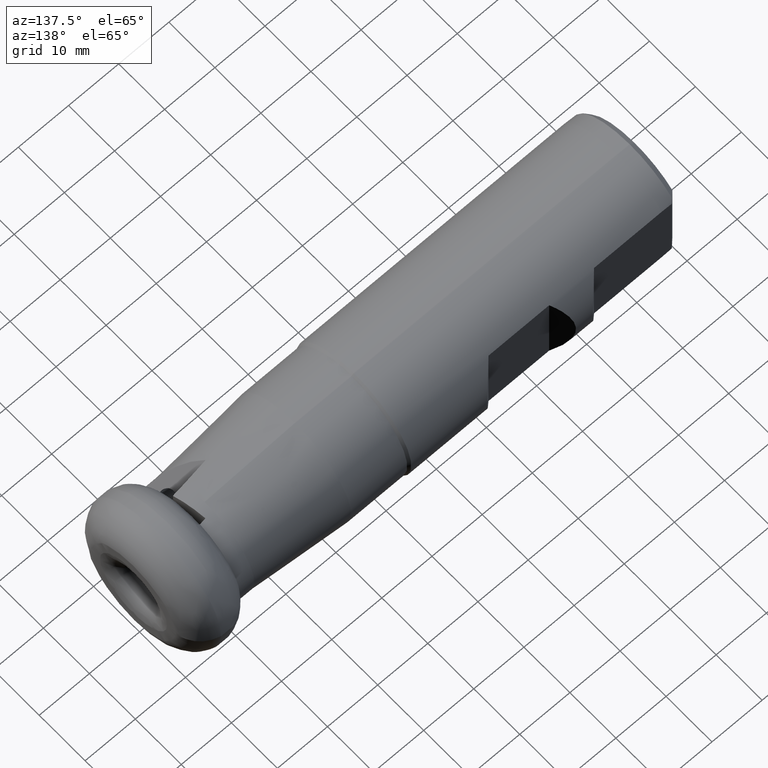
[diagram: clean part render]
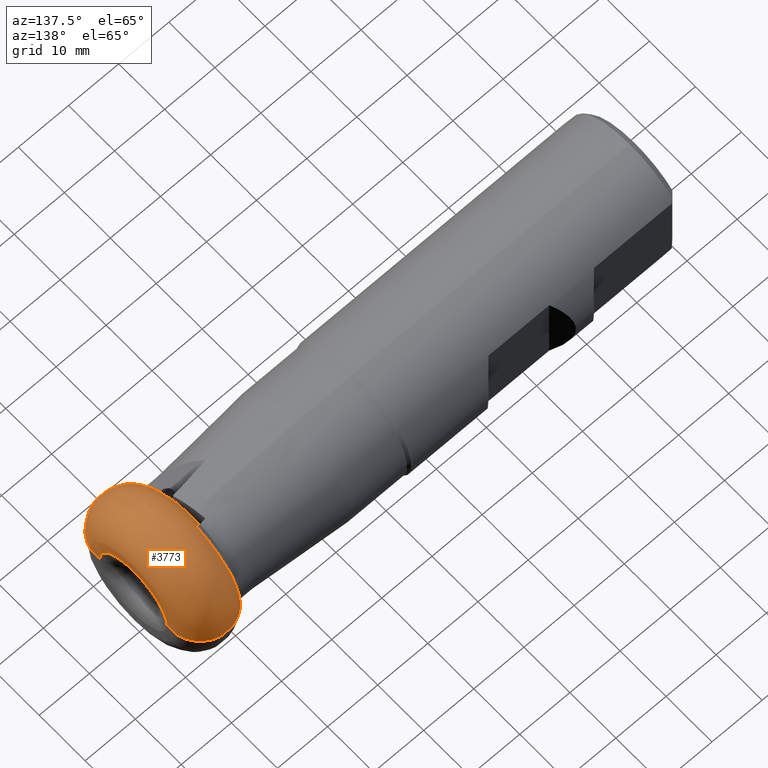
[diagram: same view with one face highlighted and labeled with its STEP entity id]
A machine part, auxiliary view. The second image highlights one B-rep face of the part: STEP entity #3773.
In plain terms, the highlighted face is a freeform B-spline surface patch.
Its self-contained STEP definition (entity closure, byte-faithful):
#1 = EDGE_CURVE ( 'NONE', #21, #2, #1566, .T. ) ;
#2 = VERTEX_POINT ( 'NONE', #2540 ) ;
#4 = VERTEX_POINT ( 'NONE', #921 ) ;
#6 = CARTESIAN_POINT ( 'NONE',  ( -2.703280238819637300, 13.76532998177207600, 0.0000000000000000000 ) ) ;
#15 = CARTESIAN_POINT ( 'NONE',  ( -2.308401257118657400, -13.61618130213184200, 27.23236260426368500 ) ) ;
#21 = VERTEX_POINT ( 'NONE', #1885 ) ;
#26 = EDGE_CURVE ( 'NONE', #506, #4122, #2174, .T. ) ;
#35 = CARTESIAN_POINT ( 'NONE',  ( -1.325018097569024700, 13.08675655905964600, 0.0000000000000000000 ) ) ;
#50 = CARTESIAN_POINT ( 'NONE',  ( -5.598932259241789400, 13.98230766846281600, 0.0000000000000000000 ) ) ;
#51 =( BOUNDED_SURFACE ( )  B_SPLINE_SURFACE ( 3, 3, ( 
 ( #3123, #205, #1834, #3455 ),
 ( #870, #2182, #2781, #3439 ),
 ( #3153, #244, #2493, #2464 ),
 ( #531, #894, #1489, #3482 ),
 ( #517, #4107, #2131, #857 ),
 ( #192, #2450, #4137, #1198 ),
 ( #1532, #3521, #313, #1256 ),
 ( #1558, #2895, #621, #965 ),
 ( #1573, #3891, #1883, #948 ),
 ( #3849, #4222, #2552, #259 ),
 ( #592, #919, #1911, #2908 ),
 ( #2579, #2868, #1610, #2209 ),
 ( #3534, #2248, #3200, #4212 ),
 ( #2538, #1288, #2218, #3235 ),
 ( #3561, #905, #1924, #2234 ),
 ( #581, #285, #3877, #4233 ),
 ( #3218, #934, #1585, #2854 ),
 ( #3862, #634, #1270, #1226 ),
 ( #3507, #1900, #606, #271 ),
 ( #2877, #3549, #2524, #3836 ),
 ( #1601, #296, #1866, #2569 ),
 ( #4183, #2193, #3189, #1240 ),
 ( #4196, #4253, #365, #2592 ),
 ( #1632, #1316, #3915, #975 ),
 ( #35, #3614, #2944, #3259 ),
 ( #3945, #328, #1975, #2314 ),
 ( #1357, #2287, #2628, #645 ),
 ( #378, #351, #1669, #1655 ),
 ( #2920, #3592, #15, #2642 ),
 ( #6, #1951, #3248, #2972 ),
 ( #3299, #1012, #698, #1303 ),
 ( #2273, #2615, #2302, #3580 ),
 ( #1961, #1619, #3902, #1941 ),
 ( #682, #672, #4243, #1342 ),
 ( #1331, #2958, #3958, #339 ),
 ( #2605, #996, #3289, #2263 ),
 ( #660, #2930, #3628, #986 ),
 ( #3272, #1991, #3602, #3930 ),
 ( #1646, #455, #4046, #1029 ),
 ( #3344, #106, #391, #2345 ),
 ( #2656, #2032, #3692, #1746 ),
 ( #3993, #2016, #3009, #2988 ),
 ( #3675, #408, #3326, #1414 ),
 ( #1072, #68, #1400, #1714 ),
 ( #3027, #3377, #2047, #85 ),
 ( #2334, #1729, #1697, #4027 ),
 ( #3360, #2061, #3041, #1040 ),
 ( #2669, #726, #2377, #711 ),
 ( #3654, #1383, #1055, #4010 ),
 ( #122, #441, #747, #2365 ),
 ( #2706, #424, #760, #2394 ),
 ( #1427, #2686, #1089, #3708 ),
 ( #2720, #775, #3313, #1368 ),
 ( #3640, #1682, #3975, #2002 ),
 ( #50, #1801, #3394, #156 ),
 ( #1441, #2423, #4103, #484 ),
 ( #793, #2111, #2124, #196 ),
 ( #1789, #2791, #3058, #2746 ),
 ( #807, #3766, #172, #1760 ),
 ( #2436, #1134, #2776, #1497 ),
 ( #3435, #471, #498, #824 ),
 ( #3780, #3091, #3423, #3074 ),
 ( #1118, #1470, #4119, #3756 ),
 ( #2141, #4088, #3118, #2758 ),
 ( #3104, #510, #2730, #838 ),
 ( #1149, #2409, #1484, #189 ),
 ( #1100, #2448, #1164, #3451 ),
 ( #137, #1815, #2459, #3409 ),
 ( #527, #3722, #2098, #4064 ),
 ( #2079, #1455, #3742, #1777 ),
 ( #4077, #2150, #3504, #1526 ),
 ( #3844, #3477, #3819, #3132 ),
 ( #1853, #4149, #1513, #1221 ),
 ( #4179, #4165, #1552, #562 ),
 ( #251, #865, #3833, #3160 ),
 ( #1862, #2519, #537, #3812 ),
 ( #2806, #3187, #2175, #576 ),
 ( #852, #2205, #239, #3516 ),
 ( #3150, #212, #1190, #2187 ),
 ( #892, #2503, #2473, #1180 ),
 ( #1843, #902, #2849, #266 ),
 ( #2162, #1236, #227, #4190 ),
 ( #2489, #3462, #1568, #549 ),
 ( #2534, #1878, #588, #2820 ),
 ( #3797, #880, #1829, #2835 ),
 ( #1208, #3490, #1544, #4132 ),
 ( #3176, #3589, #2889, #3229 ),
 ( #1935, #2875, #943, #3912 ),
 ( #1608, #1947, #4217, #2916 ),
 ( #642, #2905, #323, #2547 ),
 ( #3573, #1282, #2214, #3889 ),
 ( #962, #1892, #1596, #3871 ),
 ( #602, #4207, #3556, #2230 ),
 ( #3243, #1298, #1618, #1909 ),
 ( #2600, #291, #4230, #282 ),
 ( #1628, #631, #2565, #3530 ),
 ( #2261, #4250, #1266, #1919 ) ),
 .UNSPECIFIED., .F., .F., .T. ) 
 B_SPLINE_SURFACE_WITH_KNOTS ( ( 4, 1, 1, 1, 1, 1, 1, 1, 1, 1, 1, 1, 1, 1, 1, 1, 1, 1, 1, 1, 1, 1, 1, 1, 1, 1, 1, 1, 1, 1, 1, 1, 1, 1, 1, 1, 1, 1, 1, 1, 1, 1, 1, 1, 1, 1, 1, 1, 1, 1, 1, 1, 1, 1, 1, 1, 1, 1, 1, 1, 1, 1, 1, 1, 1, 1, 1, 1, 1, 1, 1, 1, 1, 1, 1, 1, 1, 1, 1, 1, 1, 1, 1, 1, 1, 1, 1, 1, 1, 1, 1, 1, 1, 1, 4 ),
 ( 4, 4 ),
 ( 0.0000000000000000000, 0.01130534595137227400, 0.03262522702179500300, 0.03944693190064391800, 0.04626863677955585900, 0.04843230570304367400, 0.05160236859797093200, 0.05616432844316231900, 0.06445827711618543100, 0.06795363262469919500, 0.07073990344938203800, 0.07558966582480790300, 0.07989749515589275600, 0.08332163639393361200, 0.08906039170578526600, 0.09367427182374669900, 0.09870298408307631700, 0.1086217879016179900, 0.1206833290916803900, 0.1299924011964113900, 0.1447171598259016600, 0.1613076647777132400, 0.1729960869242624900, 0.1794184733086965600, 0.1806793446742308300, 0.1875902844302745100, 0.1961688323014263400, 0.2077732183048341700, 0.2186858169738703800, 0.2299562559556106700, 0.2373758669688248400, 0.2403759941537145200, 0.2415301615241051100, 0.2422868312315115700, 0.2429856293339525400, 0.2440598911528308000, 0.2454252760548831000, 0.2474876490498973100, 0.2491767229150980400, 0.2508657967802983000, 0.2531730408774643900, 0.2575896410523989000, 0.2646768853826386200, 0.2717612862076463900, 0.2774198956651483500, 0.2812517099511059300, 0.2826712177777794800, 0.2849500467146187700, 0.2878238538176826600, 0.2893215071931410400, 0.2921030994318878400, 0.2945783493470322000, 0.2959717966085058100, 0.2969487136005049000, 0.2976020084748713900, 0.2980814326223528200, 0.2988512068544807400, 0.3001578949288066800, 0.3005894668829741700, 0.3012143885073946800, 0.3019243328495444000, 0.3055160289368941100, 0.3078762260891393400, 0.3125500280631235400, 0.3151526090580186700, 0.3174801213550658700, 0.3184086928171509000, 0.3198012278666403900, 0.3202524749412359300, 0.3210379777854402400, 0.3246351666033500700, 0.3293663452209217900, 0.3307554602938432800, 0.3375176127013004800, 0.3430380445649023300, 0.3443702006418758500, 0.3489046035464484800, 0.3526152487328481600, 0.3761640246657207400, 0.3933007096610622300, 0.4127205227687242300, 0.4248433803466157300, 0.4286067161066640700, 0.4298691554035714600, 0.4353397360020971300, 0.4619937110579279700, 0.4792066866336162600, 0.4893921979652296500, 0.4912826216993576600, 0.4921930583133714600, 0.4930655993062135800, 0.4951626807810747300, 0.4967117815261122300, 0.4987614708195358700, 0.5000000000000001100 ),
 ( 0.0000000000000000000, 1.000000000000000000 ),
 .UNSPECIFIED. ) 
 GEOMETRIC_REPRESENTATION_ITEM ( )  RATIONAL_B_SPLINE_SURFACE ( (
 ( 1.000000000000000000, 0.3333333333333334300, 0.3333333333333334300, 1.000000000000000000),
 ( 1.000000000000000000, 0.3333333333333334300, 0.3333333333333334300, 1.000000000000000000),
 ( 1.000000000000000000, 0.3333333333333334300, 0.3333333333333334300, 1.000000000000000000),
 ( 1.000000000000000000, 0.3333333333333334300, 0.3333333333333334300, 1.000000000000000000),
 ( 1.000000000000000000, 0.3333333333333334300, 0.3333333333333334300, 1.000000000000000000),
 ( 1.000000000000000000, 0.3333333333333334300, 0.3333333333333334300, 1.000000000000000000),
 ( 1.000000000000000000, 0.3333333333333334300, 0.3333333333333334300, 1.000000000000000000),
 ( 1.000000000000000000, 0.3333333333333334300, 0.3333333333333334300, 1.000000000000000000),
 ( 1.000000000000000000, 0.3333333333333334300, 0.3333333333333334300, 1.000000000000000000),
 ( 1.000000000000000000, 0.3333333333333334300, 0.3333333333333334300, 1.000000000000000000),
 ( 1.000000000000000000, 0.3333333333333334300, 0.3333333333333334300, 1.000000000000000000),
 ( 1.000000000000000000, 0.3333333333333334300, 0.3333333333333334300, 1.000000000000000000),
 ( 1.000000000000000000, 0.3333333333333334300, 0.3333333333333334300, 1.000000000000000000),
 ( 1.000000000000000000, 0.3333333333333334300, 0.3333333333333334300, 1.000000000000000000),
 ( 1.000000000000000000, 0.3333333333333334300, 0.3333333333333334300, 1.000000000000000000),
 ( 1.000000000000000000, 0.3333333333333334300, 0.3333333333333334300, 1.000000000000000000),
 ( 1.000000000000000000, 0.3333333333333334300, 0.3333333333333334300, 1.000000000000000000),
 ( 1.000000000000000000, 0.3333333333333334300, 0.3333333333333334300, 1.000000000000000000),
 ( 1.000000000000000000, 0.3333333333333334300, 0.3333333333333334300, 1.000000000000000000),
 ( 1.000000000000000000, 0.3333333333333334300, 0.3333333333333334300, 1.000000000000000000),
 ( 1.000000000000000000, 0.3333333333333334300, 0.3333333333333334300, 1.000000000000000000),
 ( 1.000000000000000000, 0.3333333333333334300, 0.3333333333333334300, 1.000000000000000000),
 ( 1.000000000000000000, 0.3333333333333334300, 0.3333333333333334300, 1.000000000000000000),
 ( 1.000000000000000000, 0.3333333333333334300, 0.3333333333333334300, 1.000000000000000000),
 ( 1.000000000000000000, 0.3333333333333334300, 0.3333333333333334300, 1.000000000000000000),
 ( 1.000000000000000000, 0.3333333333333334300, 0.3333333333333334300, 1.000000000000000000),
 ( 1.000000000000000000, 0.3333333333333334300, 0.3333333333333334300, 1.000000000000000000),
 ( 1.000000000000000000, 0.3333333333333334300, 0.3333333333333334300, 1.000000000000000000),
 ( 1.000000000000000000, 0.3333333333333334300, 0.3333333333333334300, 1.000000000000000000),
 ( 1.000000000000000000, 0.3333333333333334300, 0.3333333333333334300, 1.000000000000000000),
 ( 1.000000000000000000, 0.3333333333333334300, 0.3333333333333334300, 1.000000000000000000),
 ( 1.000000000000000000, 0.3333333333333334300, 0.3333333333333334300, 1.000000000000000000),
 ( 1.000000000000000000, 0.3333333333333334300, 0.3333333333333334300, 1.000000000000000000),
 ( 1.000000000000000000, 0.3333333333333334300, 0.3333333333333334300, 1.000000000000000000),
 ( 1.000000000000000000, 0.3333333333333334300, 0.3333333333333334300, 1.000000000000000000),
 ( 1.000000000000000000, 0.3333333333333334300, 0.3333333333333334300, 1.000000000000000000),
 ( 1.000000000000000000, 0.3333333333333334300, 0.3333333333333334300, 1.000000000000000000),
 ( 1.000000000000000000, 0.3333333333333334300, 0.3333333333333334300, 1.000000000000000000),
 ( 1.000000000000000000, 0.3333333333333334300, 0.3333333333333334300, 1.000000000000000000),
 ( 1.000000000000000000, 0.3333333333333334300, 0.3333333333333334300, 1.000000000000000000),
 ( 1.000000000000000000, 0.3333333333333334300, 0.3333333333333334300, 1.000000000000000000),
 ( 1.000000000000000000, 0.3333333333333334300, 0.3333333333333334300, 1.000000000000000000),
 ( 1.000000000000000000, 0.3333333333333334300, 0.3333333333333334300, 1.000000000000000000),
 ( 1.000000000000000000, 0.3333333333333334300, 0.3333333333333334300, 1.000000000000000000),
 ( 1.000000000000000000, 0.3333333333333334300, 0.3333333333333334300, 1.000000000000000000),
 ( 1.000000000000000000, 0.3333333333333334300, 0.3333333333333334300, 1.000000000000000000),
 ( 1.000000000000000000, 0.3333333333333334300, 0.3333333333333334300, 1.000000000000000000),
 ( 1.000000000000000000, 0.3333333333333334300, 0.3333333333333334300, 1.000000000000000000),
 ( 1.000000000000000000, 0.3333333333333334300, 0.3333333333333334300, 1.000000000000000000),
 ( 1.000000000000000000, 0.3333333333333334300, 0.3333333333333334300, 1.000000000000000000),
 ( 1.000000000000000000, 0.3333333333333334300, 0.3333333333333334300, 1.000000000000000000),
 ( 1.000000000000000000, 0.3333333333333334300, 0.3333333333333334300, 1.000000000000000000),
 ( 1.000000000000000000, 0.3333333333333334300, 0.3333333333333334300, 1.000000000000000000),
 ( 1.000000000000000000, 0.3333333333333334300, 0.3333333333333334300, 1.000000000000000000),
 ( 1.000000000000000000, 0.3333333333333334300, 0.3333333333333334300, 1.000000000000000000),
 ( 1.000000000000000000, 0.3333333333333334300, 0.3333333333333334300, 1.000000000000000000),
 ( 1.000000000000000000, 0.3333333333333334300, 0.3333333333333334300, 1.000000000000000000),
 ( 1.000000000000000000, 0.3333333333333334300, 0.3333333333333334300, 1.000000000000000000),
 ( 1.000000000000000000, 0.3333333333333334300, 0.3333333333333334300, 1.000000000000000000),
 ( 1.000000000000000000, 0.3333333333333334300, 0.3333333333333334300, 1.000000000000000000),
 ( 1.000000000000000000, 0.3333333333333334300, 0.3333333333333334300, 1.000000000000000000),
 ( 1.000000000000000000, 0.3333333333333334300, 0.3333333333333334300, 1.000000000000000000),
 ( 1.000000000000000000, 0.3333333333333334300, 0.3333333333333334300, 1.000000000000000000),
 ( 1.000000000000000000, 0.3333333333333334300, 0.3333333333333334300, 1.000000000000000000),
 ( 1.000000000000000000, 0.3333333333333334300, 0.3333333333333334300, 1.000000000000000000),
 ( 1.000000000000000000, 0.3333333333333334300, 0.3333333333333334300, 1.000000000000000000),
 ( 1.000000000000000000, 0.3333333333333334300, 0.3333333333333334300, 1.000000000000000000),
 ( 1.000000000000000000, 0.3333333333333334300, 0.3333333333333334300, 1.000000000000000000),
 ( 1.000000000000000000, 0.3333333333333334300, 0.3333333333333334300, 1.000000000000000000),
 ( 1.000000000000000000, 0.3333333333333334300, 0.3333333333333334300, 1.000000000000000000),
 ( 1.000000000000000000, 0.3333333333333334300, 0.3333333333333334300, 1.000000000000000000),
 ( 1.000000000000000000, 0.3333333333333334300, 0.3333333333333334300, 1.000000000000000000),
 ( 1.000000000000000000, 0.3333333333333334300, 0.3333333333333334300, 1.000000000000000000),
 ( 1.000000000000000000, 0.3333333333333334300, 0.3333333333333334300, 1.000000000000000000),
 ( 1.000000000000000000, 0.3333333333333334300, 0.3333333333333334300, 1.000000000000000000),
 ( 1.000000000000000000, 0.3333333333333334300, 0.3333333333333334300, 1.000000000000000000),
 ( 1.000000000000000000, 0.3333333333333334300, 0.3333333333333334300, 1.000000000000000000),
 ( 1.000000000000000000, 0.3333333333333334300, 0.3333333333333334300, 1.000000000000000000),
 ( 1.000000000000000000, 0.3333333333333334300, 0.3333333333333334300, 1.000000000000000000),
 ( 1.000000000000000000, 0.3333333333333334300, 0.3333333333333334300, 1.000000000000000000),
 ( 1.000000000000000000, 0.3333333333333334300, 0.3333333333333334300, 1.000000000000000000),
 ( 1.000000000000000000, 0.3333333333333334300, 0.3333333333333334300, 1.000000000000000000),
 ( 1.000000000000000000, 0.3333333333333334300, 0.3333333333333334300, 1.000000000000000000),
 ( 1.000000000000000000, 0.3333333333333334300, 0.3333333333333334300, 1.000000000000000000),
 ( 1.000000000000000000, 0.3333333333333334300, 0.3333333333333334300, 1.000000000000000000),
 ( 1.000000000000000000, 0.3333333333333334300, 0.3333333333333334300, 1.000000000000000000),
 ( 1.000000000000000000, 0.3333333333333334300, 0.3333333333333334300, 1.000000000000000000),
 ( 1.000000000000000000, 0.3333333333333334300, 0.3333333333333334300, 1.000000000000000000),
 ( 1.000000000000000000, 0.3333333333333334300, 0.3333333333333334300, 1.000000000000000000),
 ( 1.000000000000000000, 0.3333333333333334300, 0.3333333333333334300, 1.000000000000000000),
 ( 1.000000000000000000, 0.3333333333333334300, 0.3333333333333334300, 1.000000000000000000),
 ( 1.000000000000000000, 0.3333333333333334300, 0.3333333333333334300, 1.000000000000000000),
 ( 1.000000000000000000, 0.3333333333333334300, 0.3333333333333334300, 1.000000000000000000),
 ( 1.000000000000000000, 0.3333333333333334300, 0.3333333333333334300, 1.000000000000000000),
 ( 1.000000000000000000, 0.3333333333333334300, 0.3333333333333334300, 1.000000000000000000),
 ( 1.000000000000000000, 0.3333333333333334300, 0.3333333333333334300, 1.000000000000000000),
 ( 1.000000000000000000, 0.3333333333333334300, 0.3333333333333334300, 1.000000000000000000) ) ) 
 REPRESENTATION_ITEM ( '' )  SURFACE ( )  );
#52 = CARTESIAN_POINT ( 'NONE',  ( -10.47176449661783900, -4.168521011715995400, 8.256892842653991600 ) ) ;
#62 = CARTESIAN_POINT ( 'NONE',  ( -10.47425624275024700, -4.168871203797317900, 7.889376126105882600 ) ) ;
#68 = CARTESIAN_POINT ( 'NONE',  ( -4.394240351381483800, 13.98233441954549000, 27.96466883909097900 ) ) ;
#79 = CARTESIAN_POINT ( 'NONE',  ( -0.3841735850420935900, 12.32373047421367600, 0.0000000000000000000 ) ) ;
#85 = CARTESIAN_POINT ( 'NONE',  ( -4.641811920279442600, -13.98233480739723900, 1.712342156648565000E-015 ) ) ;
#94 = CARTESIAN_POINT ( 'NONE',  ( -10.48730565372312500, 2.090225770707621500, 8.890269282814392300 ) ) ;
#99 = CARTESIAN_POINT ( 'NONE',  ( -3.320899798752765500, 13.93496111493880100, 0.0000000000000000000 ) ) ;
#106 = CARTESIAN_POINT ( 'NONE',  ( -3.813738694552425600, 13.98232723165446200, 27.96465446330892100 ) ) ;
#115 = CARTESIAN_POINT ( 'NONE',  ( -5.823190681331341000, 13.95646186878541100, 0.0000000000000000000 ) ) ;
#122 = CARTESIAN_POINT ( 'NONE',  ( -5.244032826059655200, 13.98233486403953700, 0.0000000000000000000 ) ) ;
#125 = DIRECTION ( 'NONE',  ( 1.000000000000000000, -0.0000000000000000000, -0.0000000000000000000 ) ) ;
#126 = ORIENTED_EDGE ( 'NONE', *, *, #1366, .F. ) ;
#133 = CARTESIAN_POINT ( 'NONE',  ( -5.712039619970103600, 13.97699605320809900, 0.0000000000000000000 ) ) ;
#137 = CARTESIAN_POINT ( 'NONE',  ( -6.390872429448622300, 13.80711104912438400, 0.0000000000000000000 ) ) ;
#146 = CARTESIAN_POINT ( 'NONE',  ( -5.741254487384214400, -13.97285851436577900, 1.711181645455689100E-015 ) ) ;
#150 = CARTESIAN_POINT ( 'NONE',  ( -3.462223797731507800, 13.96510807533761800, 0.0000000000000000000 ) ) ;
#152 = VERTEX_POINT ( 'NONE', #2366 ) ;
#156 = CARTESIAN_POINT ( 'NONE',  ( -5.598932259241789400, -13.98230766846281600, 1.712338833087647700E-015 ) ) ;
#163 = CARTESIAN_POINT ( 'NONE',  ( -10.47282107851877200, 2.092261444997075300, 8.607325650371111100 ) ) ;
#165 = CARTESIAN_POINT ( 'NONE',  ( 1.224719269835684100, -8.362741847691280500, 1.024140503587074800E-015 ) ) ;
#172 = CARTESIAN_POINT ( 'NONE',  ( -5.712039619970103600, -13.97699605320809400, 27.95399210641618700 ) ) ;
#183 = CARTESIAN_POINT ( 'NONE',  ( -5.712039619970103600, -13.97699605320809900, 1.711688347825648800E-015 ) ) ;
#189 = CARTESIAN_POINT ( 'NONE',  ( -6.265429889350721200, -13.84548276328536800, 1.695582614870727700E-015 ) ) ;
#192 = CARTESIAN_POINT ( 'NONE',  ( 1.233406596305280500, 8.996485045345775000, 0.0000000000000000000 ) ) ;
#196 = CARTESIAN_POINT ( 'NONE',  ( -5.649022380765168300, -13.98214535502941700, 1.712318955424980600E-015 ) ) ;
#202 = DIRECTION ( 'NONE',  ( 0.0000000000000000000, 1.000000000000000000, 0.0000000000000000000 ) ) ;
#205 = CARTESIAN_POINT ( 'NONE',  ( 1.209227693559259000, 7.321947127893749600, 14.64389425578749700 ) ) ;
#207 = CARTESIAN_POINT ( 'NONE',  ( -4.394240351381483800, -13.98233441954549100, 1.712342109150425200E-015 ) ) ;
#212 = CARTESIAN_POINT ( 'NONE',  ( -7.771247502712998100, 13.17173360940343200, 26.34346721880685700 ) ) ;
#214 = CIRCLE ( 'NONE', #4028, 8.857968887152253500 ) ;
#227 = CARTESIAN_POINT ( 'NONE',  ( -9.197904300289216900, -11.90290489376690700, 23.80580978753381400 ) ) ;
#238 = CARTESIAN_POINT ( 'NONE',  ( -7.039551555797545200, 13.56011665911284100, 0.0000000000000000000 ) ) ;
#239 = CARTESIAN_POINT ( 'NONE',  ( -7.425469830425820200, -13.36663765314472800, 26.73327530628945700 ) ) ;
#244 = CARTESIAN_POINT ( 'NONE',  ( 1.216973776333628100, 7.870332073132182400, 15.74066414626436300 ) ) ;
#246 = CARTESIAN_POINT ( 'NONE',  ( -6.390872429448622300, -13.80711104912438400, 1.690883435178223000E-015 ) ) ;
#251 = CARTESIAN_POINT ( 'NONE',  ( -7.039551555797545200, 13.56011665911284100, 0.0000000000000000000 ) ) ;
#259 = CARTESIAN_POINT ( 'NONE',  ( 1.128057711848410100, -9.664295444924141200, 1.183534848264069400E-015 ) ) ;
#265 = CIRCLE ( 'NONE', #1976, 11.92451136441239100 ) ;
#266 = CARTESIAN_POINT ( 'NONE',  ( -8.791626760801252200, -12.35699476437853600, 1.513295408527677700E-015 ) ) ;
#271 = CARTESIAN_POINT ( 'NONE',  ( 0.4416343483359024300, -11.25888833697338100, 1.378816156383191800E-015 ) ) ;
#282 = CARTESIAN_POINT ( 'NONE',  ( -10.47430298285729000, -8.914469623003615300, 1.091707668990769000E-015 ) ) ;
#285 = CARTESIAN_POINT ( 'NONE',  ( 0.7995198207380377300, 10.57335247944065800, 21.14670495888131200 ) ) ;
#290 = CARTESIAN_POINT ( 'NONE',  ( 1.209227693559258700, -7.321947127893749600, 1.304527104264320800E-015 ) ) ;
#291 = CARTESIAN_POINT ( 'NONE',  ( -10.47430298285729000, 8.914469623003615300, 17.82893924600722700 ) ) ;
#296 = CARTESIAN_POINT ( 'NONE',  ( -0.04670896126343638400, 11.94409385761946400, 23.88818771523892400 ) ) ;
#306 = CARTESIAN_POINT ( 'NONE',  ( -10.47282107851877500, -8.513746570742677400, 2.445349082426591500 ) ) ;
#313 = CARTESIAN_POINT ( 'NONE',  ( 1.238891260286288700, -9.148313759570600100, 18.29662751914120000 ) ) ;
#315 = CARTESIAN_POINT ( 'NONE',  ( -9.167822602580525200, 9.348057227950581800, 7.403228845791177000 ) ) ;
#323 = CARTESIAN_POINT ( 'NONE',  ( -10.48207833242508300, -9.196205427004850100, 18.39241085400970000 ) ) ;
#328 = CARTESIAN_POINT ( 'NONE',  ( -1.478439895103159900, 13.18503793714110900, 26.37007587428221100 ) ) ;
#334 = CARTESIAN_POINT ( 'NONE',  ( -10.17001847042400300, -9.975676638146419300, 2.363410462884786100 ) ) ;
#339 = CARTESIAN_POINT ( 'NONE',  ( -3.555047440771387000, -13.97922953067941200, 1.711961869929269700E-015 ) ) ;
#347 = CARTESIAN_POINT ( 'NONE',  ( -10.47815013050312900, -4.169418454032339100, 8.220559417116042800 ) ) ;
#351 = CARTESIAN_POINT ( 'NONE',  ( -1.955387367478093100, 13.45377742367437400, 26.90755484734874500 ) ) ;
#360 = CARTESIAN_POINT ( 'NONE',  ( -10.47176449661783900, -4.168521011715995400, 8.256892842653991600 ) ) ;
#365 = CARTESIAN_POINT ( 'NONE',  ( -0.7800453682299748300, -12.68798733530955000, 25.37597467061910100 ) ) ;
#378 = CARTESIAN_POINT ( 'NONE',  ( -1.955387367478092800, 13.45377742367437400, 0.0000000000000000000 ) ) ;
#391 = CARTESIAN_POINT ( 'NONE',  ( -3.813738694552425600, -13.98232723165446100, 27.96465446330892100 ) ) ;
#399 = CARTESIAN_POINT ( 'NONE',  ( -9.167822602569444300, 2.275667020092440900, 11.70535394142728300 ) ) ;
#408 = CARTESIAN_POINT ( 'NONE',  ( -4.162174707643480100, 13.98233565127205800, 27.96467130254411200 ) ) ;
#417 = CARTESIAN_POINT ( 'NONE',  ( -10.48157764379394100, 2.091030790004254400, 8.960533738083922700 ) ) ;
#419 = CARTESIAN_POINT ( 'NONE',  ( -5.598932259241789400, 13.98230766846281600, 0.0000000000000000000 ) ) ;
#424 = CARTESIAN_POINT ( 'NONE',  ( -5.333335385714812000, 13.98233436623283600, 27.96466873246566800 ) ) ;
#434 = CARTESIAN_POINT ( 'NONE',  ( -3.681934093997913500, 13.98221174219539800, 0.0000000000000000000 ) ) ;
#441 = CARTESIAN_POINT ( 'NONE',  ( -5.244032826059655200, 13.98233486403953700, 27.96466972807906600 ) ) ;
#449 = CARTESIAN_POINT ( 'NONE',  ( -1.657490151538683300, 13.29322581303529000, 0.0000000000000000000 ) ) ;
#455 = CARTESIAN_POINT ( 'NONE',  ( -3.745816616713286700, 13.98236565429549900, 27.96473130859099500 ) ) ;
#465 = CARTESIAN_POINT ( 'NONE',  ( 1.209227693559258700, -7.321947127893749600, 1.304527104264320800E-015 ) ) ;
#467 = CARTESIAN_POINT ( 'NONE',  ( -5.561183144822944500, 13.98234675798619100, 0.0000000000000000000 ) ) ;
#471 = CARTESIAN_POINT ( 'NONE',  ( -5.762928385016255800, 13.96875091869517700, 27.93750183739034300 ) ) ;
#478 = CARTESIAN_POINT ( 'NONE',  ( -3.320899798752765500, -13.93496111493880100, 1.706540552565263500E-015 ) ) ;
#480 = CARTESIAN_POINT ( 'NONE',  ( -8.760066776893522100, 12.38513298813220100, 0.0000000000000000000 ) ) ;
#484 = CARTESIAN_POINT ( 'NONE',  ( -5.625269813901800500, -13.98238920485406600, 1.712348818415703500E-015 ) ) ;
#492 = CARTESIAN_POINT ( 'NONE',  ( -0.04670896126343637700, -11.94409385761946400, 1.462729631144924000E-015 ) ) ;
#498 = CARTESIAN_POINT ( 'NONE',  ( -5.762928385016255800, -13.96875091869517100, 27.93750183739034300 ) ) ;
#505 = CARTESIAN_POINT ( 'NONE',  ( -5.078956856681163100, -13.98233457775775100, 1.712342128525838800E-015 ) ) ;
#506 = VERTEX_POINT ( 'NONE', #681 ) ;
#510 = CARTESIAN_POINT ( 'NONE',  ( -6.150091026817561300, 13.87825495972523600, 27.75650991945046200 ) ) ;
#517 = CARTESIAN_POINT ( 'NONE',  ( 1.232307040593647600, 8.799219485960541900, 0.0000000000000000000 ) ) ;
#520 = CARTESIAN_POINT ( 'NONE',  ( 0.7995198207380377300, -10.57335247944065600, 1.294862227020373100E-015 ) ) ;
#527 = CARTESIAN_POINT ( 'NONE',  ( -6.423836236284001800, 13.79655709823822600, 0.0000000000000000000 ) ) ;
#531 = CARTESIAN_POINT ( 'NONE',  ( 1.224719269835684100, 8.362741847691280500, 0.0000000000000000000 ) ) ;
#535 = CARTESIAN_POINT ( 'NONE',  ( 0.7179846734936250500, -10.74723743955645700, 1.316156993002941100E-015 ) ) ;
#537 = CARTESIAN_POINT ( 'NONE',  ( -7.192911585383094500, -13.48674142265072000, 26.97348284530144000 ) ) ;
#549 = CARTESIAN_POINT ( 'NONE',  ( -9.459737965669395600, -11.54787298828514300, 1.414206569206358000E-015 ) ) ;
#558 = CARTESIAN_POINT ( 'NONE',  ( -7.425469830425819300, -13.36663765314473400, 1.636941001728618800E-015 ) ) ;
#559 = ORIENTED_EDGE ( 'NONE', *, *, #1, .F. ) ;
#562 = CARTESIAN_POINT ( 'NONE',  ( -6.882788539015608700, -13.62779152473141600, 1.668923127020975600E-015 ) ) ;
#576 = CARTESIAN_POINT ( 'NONE',  ( -7.319775342667497000, -13.42258980035657100, 1.643793163527458400E-015 ) ) ;
#581 = CARTESIAN_POINT ( 'NONE',  ( 0.7995198207380377300, 10.57335247944065600, 0.0000000000000000000 ) ) ;
#588 = CARTESIAN_POINT ( 'NONE',  ( -9.578578028232017900, -11.36977527303336200, 22.73955054606672700 ) ) ;
#592 = CARTESIAN_POINT ( 'NONE',  ( 1.075972129472385600, 9.838678335910112000, 0.0000000000000000000 ) ) ;
#599 = CARTESIAN_POINT ( 'NONE',  ( -9.346202099473389400, -11.54980892504194200, 1.929791047523395500 ) ) ;
#602 = CARTESIAN_POINT ( 'NONE',  ( -10.48466406296540600, 9.045581423843438900, 0.0000000000000000000 ) ) ;
#606 = CARTESIAN_POINT ( 'NONE',  ( 0.4416343483359024800, -11.25888833697337800, 22.51777667394675900 ) ) ;
#610 = CARTESIAN_POINT ( 'NONE',  ( -9.241850728835709500, 9.449958000063603000, 7.124220187760580600 ) ) ;
#617 = EDGE_CURVE ( 'NONE', #21, #3234, #2149, .T. ) ;
#621 = CARTESIAN_POINT ( 'NONE',  ( 1.223682003703439700, -9.271470469426558800, 18.54294093885311800 ) ) ;
#631 = CARTESIAN_POINT ( 'NONE',  ( -10.47316209472248600, 8.873429563798305600, 17.74685912759661100 ) ) ;
#634 = CARTESIAN_POINT ( 'NONE',  ( 0.6076646395209405200, 10.96515481700043700, 21.93030963400087100 ) ) ;
#640 = CARTESIAN_POINT ( 'NONE',  ( -10.48669957576695900, -8.806896299663076600, 2.492693448931401000 ) ) ;
#642 = CARTESIAN_POINT ( 'NONE',  ( -10.48207833242508300, 9.196205427004851900, 0.0000000000000000000 ) ) ;
#645 = CARTESIAN_POINT ( 'NONE',  ( -1.657490151538683300, -13.29322581303529000, 1.627950644227664000E-015 ) ) ;
#646 = ORIENTED_EDGE ( 'NONE', *, *, #2526, .T. ) ;
#647 = CARTESIAN_POINT ( 'NONE',  ( -10.48463569474183500, -4.076937678293707500, 8.083779903357571700 ) ) ;
#660 = CARTESIAN_POINT ( 'NONE',  ( -3.625731582832024500, 13.98259725457772600, 0.0000000000000000000 ) ) ;
#669 = CARTESIAN_POINT ( 'NONE',  ( 1.233406596305280500, 8.996485045345775000, 0.0000000000000000000 ) ) ;
#672 = CARTESIAN_POINT ( 'NONE',  ( -3.522659342918551300, 13.97559758650318100, 27.95119517300636100 ) ) ;
#681 = CARTESIAN_POINT ( 'NONE',  ( -10.47176449661783900, -4.168521011715995400, 8.256892842653991600 ) ) ;
#682 = CARTESIAN_POINT ( 'NONE',  ( -3.522659342918551300, 13.97559758650318400, 0.0000000000000000000 ) ) ;
#683 = B_SPLINE_CURVE_WITH_KNOTS ( 'NONE', 3,
 ( #3940, #1641, #2621, #1038, #3296, #669, #1351, #707, #1020, #3372, #2042, #3736, #2090, #1449, #2665, #3686, #756, #1756, #2027, #4021, #2056, #79, #3701, #1097, #3404, #2420, #449, #2388, #3037, #2357, #2403, #99, #150, #2716, #2072, #2371, #721, #434, #2698, #1723, #3000, #770, #786, #3718, #1740, #740, #4004, #3389, #3352, #1437, #1421, #3051, #1771, #467, #419, #4057, #1410, #1083, #133, #2681, #4039, #115, #2727, #3069, #1111, #4073, #3020, #1048, #3339, #1393, #3670, #1711, #1066, #3489, #238, #2486, #2862, #3831, #4189, #4146, #480, #3503, #2161 ),
 .UNSPECIFIED., .F., .F.,
 ( 4, 1, 1, 1, 1, 1, 1, 1, 1, 1, 1, 1, 1, 1, 1, 1, 1, 1, 1, 1, 1, 1, 1, 1, 1, 1, 1, 1, 1, 1, 1, 1, 1, 1, 1, 1, 1, 1, 1, 1, 1, 1, 1, 1, 1, 1, 1, 1, 1, 1, 1, 1, 1, 1, 1, 1, 1, 1, 1, 1, 1, 1, 1, 1, 1, 1, 1, 1, 1, 1, 1, 1, 1, 1, 1, 1, 1, 1, 1, 1, 4 ),
 ( 0.0000000000000000000, 0.01130534595137227400, 0.03262522702179500300, 0.03944693190064391800, 0.04626863677955586600, 0.04843230570304367400, 0.05160236859797093200, 0.05616432844316231900, 0.06445827711618543100, 0.06795363262469919500, 0.07073990344938203800, 0.07558966582480790300, 0.07989749515589275600, 0.08332163639393361200, 0.08906039170578526600, 0.09367427182374669900, 0.09870298408307631700, 0.1086217879016179900, 0.1206833290916803900, 0.1299924011964113900, 0.1447171598259016600, 0.1613076647777132400, 0.1729960869242624900, 0.1794184733086965600, 0.1806793446742308300, 0.1875902844302745100, 0.1961688323014263400, 0.2077732183048341700, 0.2186858169738703800, 0.2299562559556106700, 0.2373758669688248400, 0.2403759941537145200, 0.2415301615241051100, 0.2422868312315115700, 0.2429856293339525400, 0.2440598911528308000, 0.2454252760548831200, 0.2474876490498973100, 0.2491767229150980100, 0.2508657967802983000, 0.2531730408774643900, 0.2575896410523989000, 0.2646768853826386200, 0.2717612862076463900, 0.2774198956651483500, 0.2812517099511059300, 0.2826712177777794800, 0.2849500467146187700, 0.2878238538176826600, 0.2893215071931410400, 0.2921030994318878400, 0.2945783493470322000, 0.2959717966085058100, 0.2969487136005049000, 0.2976020084748713900, 0.2980814326223528200, 0.2988512068544807400, 0.3001578949288066800, 0.3005894668829741700, 0.3012143885073946800, 0.3019243328495444000, 0.3055160289368940600, 0.3078762260891393900, 0.3125500280631235400, 0.3151526090580186700, 0.3174801213550658700, 0.3184086928171508400, 0.3198012278666403900, 0.3202524749412359300, 0.3210379777854402400, 0.3246351666033500700, 0.3293663452209217900, 0.3307554602938432300, 0.3375176127013004800, 0.3430380445649023300, 0.3443702006418758500, 0.3489046035464484800, 0.3526152487328481600, 0.3761640246657207400, 0.3933007096610622300, 0.4093390334781848400 ),
 .UNSPECIFIED. ) ;
#684 = CARTESIAN_POINT ( 'NONE',  ( -10.48266316112799100, -4.090972984246011600, 8.225362841897149800 ) ) ;
#698 = CARTESIAN_POINT ( 'NONE',  ( -3.057326175268027900, -13.87254328047280400, 27.74508656094560900 ) ) ;
#707 = CARTESIAN_POINT ( 'NONE',  ( 1.223682003703439700, 9.271470469426560600, 0.0000000000000000000 ) ) ;
#711 = CARTESIAN_POINT ( 'NONE',  ( -5.078956856681163100, -13.98233457775775100, 1.712342128525838800E-015 ) ) ;
#721 = CARTESIAN_POINT ( 'NONE',  ( -3.625731582832024500, 13.98259725457772600, 0.0000000000000000000 ) ) ;
#726 = CARTESIAN_POINT ( 'NONE',  ( -5.078956856681163100, 13.98233457775774900, 27.96466915551549100 ) ) ;
#740 = CARTESIAN_POINT ( 'NONE',  ( -4.848740945689637100, 13.98233466131754500, 0.0000000000000000000 ) ) ;
#747 = CARTESIAN_POINT ( 'NONE',  ( -5.244032826059655200, -13.98233486403953300, 27.96466972807906600 ) ) ;
#756 = CARTESIAN_POINT ( 'NONE',  ( 0.7179846734936250500, 10.74723743955645700, 0.0000000000000000000 ) ) ;
#760 = CARTESIAN_POINT ( 'NONE',  ( -5.333335385714812000, -13.98233436623283400, 27.96466873246566800 ) ) ;
#762 = FACE_OUTER_BOUND ( 'NONE', #1352, .T. ) ;
#770 = CARTESIAN_POINT ( 'NONE',  ( -3.989749626724619100, 13.98233301406236300, 0.0000000000000000000 ) ) ;
#775 = CARTESIAN_POINT ( 'NONE',  ( -5.500687953425836200, 13.98232781135388000, 27.96465562270775300 ) ) ;
#786 = CARTESIAN_POINT ( 'NONE',  ( -4.162174707643481000, 13.98233565127205900, 0.0000000000000000000 ) ) ;
#793 = CARTESIAN_POINT ( 'NONE',  ( -5.649022380765168300, 13.98214535502941700, 0.0000000000000000000 ) ) ;
#801 = CARTESIAN_POINT ( 'NONE',  ( -5.823190681331341000, -13.95646186878541100, 1.709173635503014300E-015 ) ) ;
#807 = CARTESIAN_POINT ( 'NONE',  ( -5.712039619970103600, 13.97699605320809900, 0.0000000000000000000 ) ) ;
#812 = VERTEX_POINT ( 'NONE', #992 ) ;
#817 = CARTESIAN_POINT ( 'NONE',  ( -1.124610850410350000, -12.95125548300063500, 1.586071357219633400E-015 ) ) ;
#824 = CARTESIAN_POINT ( 'NONE',  ( -5.762928385016256700, -13.96875091869517700, 1.710678610066669900E-015 ) ) ;
#832 = CARTESIAN_POINT ( 'NONE',  ( -3.745816616713286700, -13.98236565429549900, 1.712345934304087100E-015 ) ) ;
#838 = CARTESIAN_POINT ( 'NONE',  ( -6.150091026817561300, -13.87825495972523600, 1.699596051417839000E-015 ) ) ;
#847 = CARTESIAN_POINT ( 'NONE',  ( -3.625731582832024500, -13.98259725457772600, 1.712374297158518200E-015 ) ) ;
#852 = CARTESIAN_POINT ( 'NONE',  ( -7.425469830425819300, 13.36663765314473400, 0.0000000000000000000 ) ) ;
#857 = CARTESIAN_POINT ( 'NONE',  ( 1.232307040593647600, -8.799219485960541900, 1.077593597847659400E-015 ) ) ;
#860 = CARTESIAN_POINT ( 'NONE',  ( -3.057326175268027400, -13.87254328047281000, 1.698896572446414900E-015 ) ) ;
#865 = CARTESIAN_POINT ( 'NONE',  ( -7.039551555797544300, 13.56011665911284100, 27.12023331822567200 ) ) ;
#870 = CARTESIAN_POINT ( 'NONE',  ( 1.212184945951810800, 7.463080127590135500, 0.0000000000000000000 ) ) ;
#880 = CARTESIAN_POINT ( 'NONE',  ( -9.649719348020095600, 11.25972242517898200, 22.51944485035796000 ) ) ;
#892 = CARTESIAN_POINT ( 'NONE',  ( -8.230654562353333100, 12.85714588250526300, 0.0000000000000000000 ) ) ;
#894 = CARTESIAN_POINT ( 'NONE',  ( 1.224719269835684100, 8.362741847691280500, 16.72548369538255700 ) ) ;
#902 = CARTESIAN_POINT ( 'NONE',  ( -8.791626760801252200, 12.35699476437853400, 24.71398952875706500 ) ) ;
#905 = CARTESIAN_POINT ( 'NONE',  ( 0.8676764001758373600, 10.41538778934933700, 20.83077557869867000 ) ) ;
#908 = CARTESIAN_POINT ( 'NONE',  ( -9.278998266422121300, 9.933342348008350700, 6.351449985752077900 ) ) ;
#910 = CARTESIAN_POINT ( 'NONE',  ( -6.733477718572021200, -13.68756809907655700, 1.676243646064552500E-015 ) ) ;
#919 = CARTESIAN_POINT ( 'NONE',  ( 1.075972129472385600, 9.838678335910112000, 19.67735667182022000 ) ) ;
#921 = CARTESIAN_POINT ( 'NONE',  ( 1.209227693559259000, 7.321947127893748700, 0.0000000000000000000 ) ) ;
#925 = CARTESIAN_POINT ( 'NONE',  ( -9.039974477135860600, -12.07876044681789600, 1.479221531886318800E-015 ) ) ;
#933 = ORIENTED_EDGE ( 'NONE', *, *, #3017, .T. ) ;
#934 = CARTESIAN_POINT ( 'NONE',  ( 0.7179846734936250500, 10.74723743955645700, 21.49447487911291100 ) ) ;
#936 = CARTESIAN_POINT ( 'NONE',  ( -9.236975444655243500, 10.13902446686173100, 6.123017618405625300 ) ) ;
#943 = CARTESIAN_POINT ( 'NONE',  ( -10.35828496160314000, -9.709447733967017800, 19.41889546793403600 ) ) ;
#947 = EDGE_CURVE ( 'NONE', #3234, #1899, #2878, .T. ) ;
#948 = CARTESIAN_POINT ( 'NONE',  ( 1.177416696506693200, -9.466152049014825200, 1.159269280706816500E-015 ) ) ;
#959 = CARTESIAN_POINT ( 'NONE',  ( -10.47000557683552000, -8.917644803859021300, 2.491710132550384300 ) ) ;
#962 = CARTESIAN_POINT ( 'NONE',  ( -10.48653571899260600, 9.102001141879368300, 0.0000000000000000000 ) ) ;
#965 = CARTESIAN_POINT ( 'NONE',  ( 1.223682003703439700, -9.271470469426560600, 1.135427663377244700E-015 ) ) ;
#975 = CARTESIAN_POINT ( 'NONE',  ( -1.124610850410350000, -12.95125548300063500, 1.586071357219633400E-015 ) ) ;
#986 = CARTESIAN_POINT ( 'NONE',  ( -3.625731582832024500, -13.98259725457772600, 1.712374297158518200E-015 ) ) ;
#992 = CARTESIAN_POINT ( 'NONE',  ( -9.167822602587575500, 11.92451136441239100, 0.0000000000000000000 ) ) ;
#996 = CARTESIAN_POINT ( 'NONE',  ( -3.586542143942168500, 13.98168276131028300, 27.96336552262056300 ) ) ;
#998 = CARTESIAN_POINT ( 'NONE',  ( -10.47945564646936300, -4.113795636932156400, 7.983519127045549400 ) ) ;
#1012 = CARTESIAN_POINT ( 'NONE',  ( -3.057326175268027900, 13.87254328047281000, 27.74508656094560900 ) ) ;
#1020 = CARTESIAN_POINT ( 'NONE',  ( 1.177416696506693200, 9.466152049014825200, 0.0000000000000000000 ) ) ;
#1029 = CARTESIAN_POINT ( 'NONE',  ( -3.745816616713286700, -13.98236565429549900, 1.712345934304087100E-015 ) ) ;
#1033 = VERTEX_POINT ( 'NONE', #1837 ) ;
#1038 = CARTESIAN_POINT ( 'NONE',  ( 1.224719269835684100, 8.362741847691280500, 0.0000000000000000000 ) ) ;
#1040 = CARTESIAN_POINT ( 'NONE',  ( -4.984946400313181600, -13.98233481842961900, 1.712342157999642200E-015 ) ) ;
#1048 = CARTESIAN_POINT ( 'NONE',  ( -6.390872429448622300, 13.80711104912438400, 0.0000000000000000000 ) ) ;
#1055 = CARTESIAN_POINT ( 'NONE',  ( -5.161007036223574000, -13.98233474712864000, 27.96466949425727900 ) ) ;
#1066 = CARTESIAN_POINT ( 'NONE',  ( -6.733477718572021200, 13.68756809907655700, 0.0000000000000000000 ) ) ;
#1072 = CARTESIAN_POINT ( 'NONE',  ( -4.394240351381483800, 13.98233441954549100, 0.0000000000000000000 ) ) ;
#1083 = CARTESIAN_POINT ( 'NONE',  ( -5.680901882850845300, 13.98047347247893100, 0.0000000000000000000 ) ) ;
#1089 = CARTESIAN_POINT ( 'NONE',  ( -5.417662131504144400, -13.98233734916231100, 27.96467469832462200 ) ) ;
#1090 = AXIS2_PLACEMENT_3D ( 'NONE', #1773, #1130, #3071 ) ;
#1097 = CARTESIAN_POINT ( 'NONE',  ( -1.124610850410350000, 12.95125548300063500, 0.0000000000000000000 ) ) ;
#1100 = CARTESIAN_POINT ( 'NONE',  ( -6.335472337175852800, 13.82440300494731900, 0.0000000000000000000 ) ) ;
#1111 = CARTESIAN_POINT ( 'NONE',  ( -6.150091026817561300, 13.87825495972523600, 0.0000000000000000000 ) ) ;
#1118 = CARTESIAN_POINT ( 'NONE',  ( -5.904510982033882800, 13.93896871568466400, 0.0000000000000000000 ) ) ;
#1122 = CARTESIAN_POINT ( 'NONE',  ( -9.167822602587575500, 0.0000000000000000000, 0.0000000000000000000 ) ) ;
#1127 = CARTESIAN_POINT ( 'NONE',  ( -5.904510982033882800, -13.93896871568466400, 1.707031342107831600E-015 ) ) ;
#1130 = DIRECTION ( 'NONE',  ( 1.000000000000000000, -0.0000000000000000000, -0.0000000000000000000 ) ) ;
#1134 = CARTESIAN_POINT ( 'NONE',  ( -5.741254487384214400, 13.97285851436577700, 27.94571702873154700 ) ) ;
#1141 = CARTESIAN_POINT ( 'NONE',  ( -10.47433376657392000, 2.092048850555235300, 8.677955234692545300 ) ) ;
#1144 = CARTESIAN_POINT ( 'NONE',  ( -5.333335385714812000, -13.98233436623283800, 1.712342102621508200E-015 ) ) ;
#1149 = CARTESIAN_POINT ( 'NONE',  ( -6.265429889350721200, 13.84548276328536800, 0.0000000000000000000 ) ) ;
#1159 = CARTESIAN_POINT ( 'NONE',  ( -5.680901882850845300, -13.98047347247893100, 1.712114208863580500E-015 ) ) ;
#1164 = CARTESIAN_POINT ( 'NONE',  ( -6.335472337175853700, -13.82440300494731600, 27.64880600989463100 ) ) ;
#1172 = EDGE_CURVE ( 'NONE', #4, #4131, #3073, .T. ) ;
#1173 = CARTESIAN_POINT ( 'NONE',  ( -5.625269813901800500, -13.98238920485406600, 1.712348818415703500E-015 ) ) ;
#1180 = CARTESIAN_POINT ( 'NONE',  ( -8.230654562353333100, -12.85714588250526300, 1.574546255118064100E-015 ) ) ;
#1187 = CARTESIAN_POINT ( 'NONE',  ( 1.223682003703439700, -9.271470469426560600, 1.135427663377244700E-015 ) ) ;
#1190 = CARTESIAN_POINT ( 'NONE',  ( -7.771247502712998100, -13.17173360940342900, 26.34346721880685700 ) ) ;
#1198 = CARTESIAN_POINT ( 'NONE',  ( 1.233406596305280500, -8.996485045345775000, 1.101751661435973300E-015 ) ) ;
#1202 = CARTESIAN_POINT ( 'NONE',  ( -7.192911585383094500, -13.48674142265072400, 1.651649471417722900E-015 ) ) ;
#1208 = CARTESIAN_POINT ( 'NONE',  ( -9.868792039986740100, 10.90511611223161000, 0.0000000000000000000 ) ) ;
#1221 = CARTESIAN_POINT ( 'NONE',  ( -6.733477718572021200, -13.68756809907655700, 1.676243646064552500E-015 ) ) ;
#1226 = CARTESIAN_POINT ( 'NONE',  ( 0.6076646395209405200, -10.96515481700043700, 1.342844174879476800E-015 ) ) ;
#1236 = CARTESIAN_POINT ( 'NONE',  ( -9.197904300289216900, 11.90290489376690900, 23.80580978753381400 ) ) ;
#1239 = DIRECTION ( 'NONE',  ( 0.0000000000000000000, 1.000000000000000000, 0.0000000000000000000 ) ) ;
#1240 = CARTESIAN_POINT ( 'NONE',  ( -0.3841735850420935900, -12.32373047421367600, 1.509221707880047100E-015 ) ) ;
#1254 = CARTESIAN_POINT ( 'NONE',  ( -10.47282107851877500, 0.0000000000000000000, 0.0000000000000000000 ) ) ;
#1255 = EDGE_CURVE ( 'NONE', #812, #2, #3178, .T. ) ;
#1256 = CARTESIAN_POINT ( 'NONE',  ( 1.238891260286288900, -9.148313759570600100, 1.120345316325382400E-015 ) ) ;
#1265 = CARTESIAN_POINT ( 'NONE',  ( -10.48672076637314500, -8.770191932039887600, 2.488221144591871200 ) ) ;
#1266 = CARTESIAN_POINT ( 'NONE',  ( -10.47282107851877500, -8.857968887152248200, 17.71593777430449600 ) ) ;
#1270 = CARTESIAN_POINT ( 'NONE',  ( 0.6076646395209405200, -10.96515481700043400, 21.93030963400087100 ) ) ;
#1282 = CARTESIAN_POINT ( 'NONE',  ( -10.48593442364570400, 9.150454125656491300, 18.30090825131297500 ) ) ;
#1288 = CARTESIAN_POINT ( 'NONE',  ( 0.9295534362120193600, 10.25900210888696200, 20.51800421777391700 ) ) ;
#1295 = CARTESIAN_POINT ( 'NONE',  ( -9.939409996983625800, -10.52481016707188900, 2.242640297422820800 ) ) ;
#1297 = AXIS2_PLACEMENT_3D ( 'NONE', #3402, #4019, #3035 ) ;
#1298 = CARTESIAN_POINT ( 'NONE',  ( -10.47903238591325500, 8.974695418350020000, 17.94939083670003700 ) ) ;
#1303 = CARTESIAN_POINT ( 'NONE',  ( -3.057326175268027400, -13.87254328047281000, 1.698896572446414900E-015 ) ) ;
#1316 = CARTESIAN_POINT ( 'NONE',  ( -1.124610850410350000, 12.95125548300063100, 25.90251096600125900 ) ) ;
#1331 = CARTESIAN_POINT ( 'NONE',  ( -3.555047440771387000, 13.97922953067941200, 0.0000000000000000000 ) ) ;
#1342 = CARTESIAN_POINT ( 'NONE',  ( -3.522659342918551300, -13.97559758650318400, 1.711517085048259900E-015 ) ) ;
#1351 = CARTESIAN_POINT ( 'NONE',  ( 1.238891260286288900, 9.148313759570600100, 0.0000000000000000000 ) ) ;
#1352 = EDGE_LOOP ( 'NONE', ( #126, #3638, #2271, #3616, #559, #1905, #2204, #933, #4153, #2176, #2070, #2892, #646 ) ) ;
#1357 = CARTESIAN_POINT ( 'NONE',  ( -1.657490151538683300, 13.29322581303529000, 0.0000000000000000000 ) ) ;
#1362 = CARTESIAN_POINT ( 'NONE',  ( -10.48715898281713000, -4.170684565656260100, 8.110867474177551300 ) ) ;
#1366 = EDGE_CURVE ( 'NONE', #4131, #152, #3331, .T. ) ;
#1368 = CARTESIAN_POINT ( 'NONE',  ( -5.500687953425836200, -13.98232781135388200, 1.712341299880354700E-015 ) ) ;
#1383 = CARTESIAN_POINT ( 'NONE',  ( -5.161007036223574000, 13.98233474712864100, 27.96466949425727900 ) ) ;
#1390 = CARTESIAN_POINT ( 'NONE',  ( -9.533001870844957500, 2.224344420912987900, 11.26649290860890900 ) ) ;
#1393 = CARTESIAN_POINT ( 'NONE',  ( -6.455039287342287000, 13.78636502782390100, 0.0000000000000000000 ) ) ;
#1396 = DIRECTION ( 'NONE',  ( 1.000000000000000000, -0.0000000000000000000, -0.0000000000000000000 ) ) ;
#1400 = CARTESIAN_POINT ( 'NONE',  ( -4.394240351381483800, -13.98233441954549000, 27.96466883909097900 ) ) ;
#1410 = CARTESIAN_POINT ( 'NONE',  ( -5.649022380765168300, 13.98214535502941700, 0.0000000000000000000 ) ) ;
#1414 = CARTESIAN_POINT ( 'NONE',  ( -4.162174707643481000, -13.98233565127205900, 1.712342259993425000E-015 ) ) ;
#1421 = CARTESIAN_POINT ( 'NONE',  ( -5.333335385714812000, 13.98233436623283800, 0.0000000000000000000 ) ) ;
#1427 = CARTESIAN_POINT ( 'NONE',  ( -5.417662131504144400, 13.98233734916231400, 0.0000000000000000000 ) ) ;
#1430 = DIRECTION ( 'NONE',  ( 0.0000000000000000000, 0.0000000000000000000, -1.000000000000000000 ) ) ;
#1437 = CARTESIAN_POINT ( 'NONE',  ( -5.244032826059655200, 13.98233486403953700, 0.0000000000000000000 ) ) ;
#1441 = CARTESIAN_POINT ( 'NONE',  ( -5.625269813901800500, 13.98238920485406600, 0.0000000000000000000 ) ) ;
#1449 = CARTESIAN_POINT ( 'NONE',  ( 0.9295534362120192500, 10.25900210888696200, 0.0000000000000000000 ) ) ;
#1455 = CARTESIAN_POINT ( 'NONE',  ( -6.455039287342286200, 13.78636502782390000, 27.57273005564779600 ) ) ;
#1467 = CARTESIAN_POINT ( 'NONE',  ( -6.033618351467298500, -13.90847366653056500, 1.703296775674190800E-015 ) ) ;
#1470 = CARTESIAN_POINT ( 'NONE',  ( -5.904510982033883700, 13.93896871568466400, 27.87793743136931800 ) ) ;
#1476 = CARTESIAN_POINT ( 'NONE',  ( -3.813738694552425200, -13.98232723165446400, 1.712341228887651000E-015 ) ) ;
#1484 = CARTESIAN_POINT ( 'NONE',  ( -6.265429889350721200, -13.84548276328536600, 27.69096552657073200 ) ) ;
#1489 = CARTESIAN_POINT ( 'NONE',  ( 1.224719269835684100, -8.362741847691278700, 16.72548369538255700 ) ) ;
#1497 = CARTESIAN_POINT ( 'NONE',  ( -5.741254487384214400, -13.97285851436577900, 1.711181645455689100E-015 ) ) ;
#1508 = CARTESIAN_POINT ( 'NONE',  ( 0.2263185457749752300, -11.58530654574631300, 1.418790857838910000E-015 ) ) ;
#1513 = CARTESIAN_POINT ( 'NONE',  ( -6.733477718572020300, -13.68756809907655200, 27.37513619815310400 ) ) ;
#1521 = CARTESIAN_POINT ( 'NONE',  ( 1.216973776333628100, -7.870332073132183300, 9.638376981588082300E-016 ) ) ;
#1526 = CARTESIAN_POINT ( 'NONE',  ( -6.512333834088420500, -13.76740649564339400, 1.686021029745016000E-015 ) ) ;
#1532 = CARTESIAN_POINT ( 'NONE',  ( 1.238891260286288900, 9.148313759570600100, 0.0000000000000000000 ) ) ;
#1544 = CARTESIAN_POINT ( 'NONE',  ( -9.868792039986740100, -10.90511611223160700, 21.81023222446321700 ) ) ;
#1552 = CARTESIAN_POINT ( 'NONE',  ( -6.882788539015608700, -13.62779152473141400, 27.25558304946282800 ) ) ;
#1558 = CARTESIAN_POINT ( 'NONE',  ( 1.223682003703439700, 9.271470469426560600, 0.0000000000000000000 ) ) ;
#1566 = B_SPLINE_CURVE_WITH_KNOTS ( 'NONE', 3,
 ( #315, #2235, #610, #3563, #1927, #908, #936, #2580 ),
 .UNSPECIFIED., .F., .F.,
 ( 4, 2, 2, 4 ),
 ( 0.007598080892531358000, 0.008048975122347193000, 0.008499869352163029800, 0.009401657811794698200 ),
 .UNSPECIFIED. ) ;
#1568 = CARTESIAN_POINT ( 'NONE',  ( -9.459737965669395600, -11.54787298828513900, 23.09574597657027800 ) ) ;
#1573 = CARTESIAN_POINT ( 'NONE',  ( 1.177416696506693200, 9.466152049014825200, 0.0000000000000000000 ) ) ;
#1585 = CARTESIAN_POINT ( 'NONE',  ( 0.7179846734936250500, -10.74723743955645400, 21.49447487911291100 ) ) ;
#1596 = CARTESIAN_POINT ( 'NONE',  ( -10.48653571899260800, -9.102001141879366500, 18.20400228375873300 ) ) ;
#1601 = CARTESIAN_POINT ( 'NONE',  ( -0.04670896126343637700, 11.94409385761946400, 0.0000000000000000000 ) ) ;
#1608 = CARTESIAN_POINT ( 'NONE',  ( -10.45186728536497100, 9.355687027889935300, 0.0000000000000000000 ) ) ;
#1610 = CARTESIAN_POINT ( 'NONE',  ( 1.033804693464909900, -9.971098946095109400, 19.94219789219021900 ) ) ;
#1618 = CARTESIAN_POINT ( 'NONE',  ( -10.47903238591325500, -8.974695418350018300, 17.94939083670003700 ) ) ;
#1619 = CARTESIAN_POINT ( 'NONE',  ( -3.462223797731508200, 13.96510807533762000, 27.93021615067522800 ) ) ;
#1628 = CARTESIAN_POINT ( 'NONE',  ( -10.47316209472248600, 8.873429563798307400, 0.0000000000000000000 ) ) ;
#1632 = CARTESIAN_POINT ( 'NONE',  ( -1.124610850410350000, 12.95125548300063500, 0.0000000000000000000 ) ) ;
#1641 = CARTESIAN_POINT ( 'NONE',  ( 1.212184945951810800, 7.463080127590135500, 0.0000000000000000000 ) ) ;
#1646 = CARTESIAN_POINT ( 'NONE',  ( -3.745816616713286700, 13.98236565429549900, 0.0000000000000000000 ) ) ;
#1655 = CARTESIAN_POINT ( 'NONE',  ( -1.955387367478092800, -13.45377742367437400, 1.647612545834374700E-015 ) ) ;
#1656 = CARTESIAN_POINT ( 'NONE',  ( -10.47359494348178000, -4.155496705522333300, 7.862497748721735600 ) ) ;
#1669 = CARTESIAN_POINT ( 'NONE',  ( -1.955387367478093100, -13.45377742367437300, 26.90755484734874500 ) ) ;
#1682 = CARTESIAN_POINT ( 'NONE',  ( -5.561183144822944500, 13.98234675798619100, 27.96469351597237500 ) ) ;
#1692 = CARTESIAN_POINT ( 'NONE',  ( -10.48620750076275200, -4.170550843574128300, 8.074033968688841200 ) ) ;
#1697 = CARTESIAN_POINT ( 'NONE',  ( -4.848740945689637100, -13.98233466131753900, 27.96466932263507800 ) ) ;
#1711 = CARTESIAN_POINT ( 'NONE',  ( -6.619850136317919200, 13.73014278225033300, 0.0000000000000000000 ) ) ;
#1714 = CARTESIAN_POINT ( 'NONE',  ( -4.394240351381483800, -13.98233441954549100, 1.712342109150425200E-015 ) ) ;
#1723 = CARTESIAN_POINT ( 'NONE',  ( -3.813738694552425200, 13.98232723165446400, 0.0000000000000000000 ) ) ;
#1729 = CARTESIAN_POINT ( 'NONE',  ( -4.848740945689637100, 13.98233466131754300, 27.96466932263507800 ) ) ;
#1740 = CARTESIAN_POINT ( 'NONE',  ( -4.641811920279442600, 13.98233480739723900, 0.0000000000000000000 ) ) ;
#1746 = CARTESIAN_POINT ( 'NONE',  ( -3.884718267304851500, -13.98233751475792500, 1.712342488204625000E-015 ) ) ;
#1756 = CARTESIAN_POINT ( 'NONE',  ( 0.6076646395209405200, 10.96515481700043700, 0.0000000000000000000 ) ) ;
#1760 = CARTESIAN_POINT ( 'NONE',  ( -5.712039619970103600, -13.97699605320809900, 1.711688347825648800E-015 ) ) ;
#1771 = CARTESIAN_POINT ( 'NONE',  ( -5.500687953425836200, 13.98232781135388200, 0.0000000000000000000 ) ) ;
#1773 = CARTESIAN_POINT ( 'NONE',  ( 1.209227693559258700, 0.0000000000000000000, 0.0000000000000000000 ) ) ;
#1777 = CARTESIAN_POINT ( 'NONE',  ( -6.455039287342287000, -13.78636502782390100, 1.688342780320155100E-015 ) ) ;
#1787 = CARTESIAN_POINT ( 'NONE',  ( -1.478439895103159900, -13.18503793714110900, 1.614701450635628100E-015 ) ) ;
#1789 = CARTESIAN_POINT ( 'NONE',  ( -5.680901882850845300, 13.98047347247893100, 0.0000000000000000000 ) ) ;
#1798 = CARTESIAN_POINT ( 'NONE',  ( -5.598932259241789400, -13.98230766846281600, 1.712338833087647700E-015 ) ) ;
#1801 = CARTESIAN_POINT ( 'NONE',  ( -5.598932259241789400, 13.98230766846281400, 27.96461533692561800 ) ) ;
#1804 = AXIS2_PLACEMENT_3D ( 'NONE', #3038, #1396, #2374 ) ;
#1811 = CARTESIAN_POINT ( 'NONE',  ( -2.308401257118657400, -13.61618130213184600, 1.667501284826580300E-015 ) ) ;
#1815 = CARTESIAN_POINT ( 'NONE',  ( -6.390872429448622300, 13.80711104912438500, 27.61422209824876000 ) ) ;
#1822 = CARTESIAN_POINT ( 'NONE',  ( 0.4416343483359024300, -11.25888833697338100, 1.378816156383191800E-015 ) ) ;
#1829 = CARTESIAN_POINT ( 'NONE',  ( -9.649719348020095600, -11.25972242517897800, 22.51944485035796000 ) ) ;
#1834 = CARTESIAN_POINT ( 'NONE',  ( 1.209227693559259000, -7.321947127893748700, 14.64389425578749900 ) ) ;
#1837 = CARTESIAN_POINT ( 'NONE',  ( -10.47282107851877500, -4.168669504618291600, 7.815740999228597600 ) ) ;
#1838 = CARTESIAN_POINT ( 'NONE',  ( -5.500687953425836200, -13.98232781135388200, 1.712341299880354700E-015 ) ) ;
#1843 = CARTESIAN_POINT ( 'NONE',  ( -8.791626760801252200, 12.35699476437853600, 0.0000000000000000000 ) ) ;
#1853 = CARTESIAN_POINT ( 'NONE',  ( -6.733477718572021200, 13.68756809907655700, 0.0000000000000000000 ) ) ;
#1862 = CARTESIAN_POINT ( 'NONE',  ( -7.192911585383094500, 13.48674142265072400, 0.0000000000000000000 ) ) ;
#1866 = CARTESIAN_POINT ( 'NONE',  ( -0.04670896126343638400, -11.94409385761946200, 23.88818771523892400 ) ) ;
#1872 = CARTESIAN_POINT ( 'NONE',  ( -6.512333834088420500, -13.76740649564339400, 1.686021029745016000E-015 ) ) ;
#1878 = CARTESIAN_POINT ( 'NONE',  ( -9.578578028232017900, 11.36977527303336500, 22.73955054606672700 ) ) ;
#1883 = CARTESIAN_POINT ( 'NONE',  ( 1.177416696506693200, -9.466152049014823400, 18.93230409802964700 ) ) ;
#1885 = CARTESIAN_POINT ( 'NONE',  ( -9.167822602580525200, 9.348057227950581800, 7.403228845791177000 ) ) ;
#1892 = CARTESIAN_POINT ( 'NONE',  ( -10.48653571899260800, 9.102001141879368300, 18.20400228375873300 ) ) ;
#1899 = VERTEX_POINT ( 'NONE', #3752 ) ;
#1900 = CARTESIAN_POINT ( 'NONE',  ( 0.4416343483359024800, 11.25888833697338100, 22.51777667394675900 ) ) ;
#1901 = VERTEX_POINT ( 'NONE', #3099 ) ;
#1905 = ORIENTED_EDGE ( 'NONE', *, *, #617, .T. ) ;
#1909 = CARTESIAN_POINT ( 'NONE',  ( -10.47903238591325500, -8.974695418350018300, 1.099083201740476600E-015 ) ) ;
#1911 = CARTESIAN_POINT ( 'NONE',  ( 1.075972129472385600, -9.838678335910110200, 19.67735667182022000 ) ) ;
#1917 = CARTESIAN_POINT ( 'NONE',  ( -10.47282107851877700, -4.161003040848878100, 7.819825221819474600 ) ) ;
#1919 = CARTESIAN_POINT ( 'NONE',  ( -10.47282107851877500, -8.857968887152249900, 1.084788324459784600E-015 ) ) ;
#1924 = CARTESIAN_POINT ( 'NONE',  ( 0.8676764001758373600, -10.41538778934933500, 20.83077557869867000 ) ) ;
#1927 = CARTESIAN_POINT ( 'NONE',  ( -9.286171454914141400, 9.670755379016831900, 6.723314464423246800 ) ) ;
#1935 = CARTESIAN_POINT ( 'NONE',  ( -10.35828496160314000, 9.709447733967019500, 0.0000000000000000000 ) ) ;
#1941 = CARTESIAN_POINT ( 'NONE',  ( -3.462223797731507800, -13.96510807533761800, 1.710232490420906700E-015 ) ) ;
#1944 = CARTESIAN_POINT ( 'NONE',  ( -10.47443812834046300, -8.587113629190740800, 2.455478346606167200 ) ) ;
#1947 = CARTESIAN_POINT ( 'NONE',  ( -10.45186728536497100, 9.355687027889935300, 18.71137405577986700 ) ) ;
#1951 = CARTESIAN_POINT ( 'NONE',  ( -2.703280238819637700, 13.76532998177207800, 27.53065996354414600 ) ) ;
#1953 = CARTESIAN_POINT ( 'NONE',  ( -10.47742576340816900, -4.128239005405731600, 8.244958169179142300 ) ) ;
#1957 = CARTESIAN_POINT ( 'NONE',  ( -10.39329868142275100, -9.251629787773127900, 2.465908730582326400 ) ) ;
#1961 = CARTESIAN_POINT ( 'NONE',  ( -3.462223797731507800, 13.96510807533761800, 0.0000000000000000000 ) ) ;
#1975 = CARTESIAN_POINT ( 'NONE',  ( -1.478439895103159900, -13.18503793714110600, 26.37007587428221100 ) ) ;
#1976 = AXIS2_PLACEMENT_3D ( 'NONE', #1122, #125, #1430 ) ;
#1991 = CARTESIAN_POINT ( 'NONE',  ( -3.681934093997913500, 13.98221174219539800, 27.96442348439078900 ) ) ;
#1992 = CARTESIAN_POINT ( 'NONE',  ( -10.48190478573788700, -4.096369105535009300, 8.022889426201780700 ) ) ;
#2002 = CARTESIAN_POINT ( 'NONE',  ( -5.561183144822944500, -13.98234675798619100, 1.712343620173615900E-015 ) ) ;
#2016 = CARTESIAN_POINT ( 'NONE',  ( -3.989749626724619100, 13.98233301406236300, 27.96466602812471400 ) ) ;
#2023 = CARTESIAN_POINT ( 'NONE',  ( -10.18319560077531000, 2.132965651390307000, 9.993622676322242900 ) ) ;
#2027 = CARTESIAN_POINT ( 'NONE',  ( 0.4416343483359024300, 11.25888833697338100, 0.0000000000000000000 ) ) ;
#2032 = CARTESIAN_POINT ( 'NONE',  ( -3.884718267304851500, 13.98233751475792300, 27.96467502951583800 ) ) ;
#2042 = CARTESIAN_POINT ( 'NONE',  ( 1.075972129472385600, 9.838678335910112000, 0.0000000000000000000 ) ) ;
#2047 = CARTESIAN_POINT ( 'NONE',  ( -4.641811920279443400, -13.98233480739723500, 27.96466961479447000 ) ) ;
#2056 = CARTESIAN_POINT ( 'NONE',  ( -0.04670896126343637700, 11.94409385761946400, 0.0000000000000000000 ) ) ;
#2061 = CARTESIAN_POINT ( 'NONE',  ( -4.984946400313181600, 13.98233481842961700, 27.96466963685923100 ) ) ;
#2070 = ORIENTED_EDGE ( 'NONE', *, *, #2689, .T. ) ;
#2072 = CARTESIAN_POINT ( 'NONE',  ( -3.555047440771387000, 13.97922953067941200, 0.0000000000000000000 ) ) ;
#2079 = CARTESIAN_POINT ( 'NONE',  ( -6.455039287342287000, 13.78636502782390100, 0.0000000000000000000 ) ) ;
#2088 = CARTESIAN_POINT ( 'NONE',  ( -5.244032826059655200, -13.98233486403953700, 1.712342163585246100E-015 ) ) ;
#2090 = CARTESIAN_POINT ( 'NONE',  ( 0.9852611170642986400, 10.11212175698172000, 0.0000000000000000000 ) ) ;
#2098 = CARTESIAN_POINT ( 'NONE',  ( -6.423836236284000900, -13.79655709823822100, 27.59311419647644200 ) ) ;
#2107 = CARTESIAN_POINT ( 'NONE',  ( -4.984946400313181600, -13.98233481842961900, 1.712342157999642200E-015 ) ) ;
#2111 = CARTESIAN_POINT ( 'NONE',  ( -5.649022380765168300, 13.98214535502941700, 27.96429071005883000 ) ) ;
#2118 = CARTESIAN_POINT ( 'NONE',  ( 1.177416696506693200, -9.466152049014825200, 1.159269280706816500E-015 ) ) ;
#2120 = AXIS2_PLACEMENT_3D ( 'NONE', #2779, #2128, #202 ) ;
#2124 = CARTESIAN_POINT ( 'NONE',  ( -5.649022380765168300, -13.98214535502941500, 27.96429071005883000 ) ) ;
#2128 = DIRECTION ( 'NONE',  ( 1.000000000000000000, -0.0000000000000000000, -0.0000000000000000000 ) ) ;
#2131 = CARTESIAN_POINT ( 'NONE',  ( 1.232307040593647600, -8.799219485960540200, 17.59843897192108000 ) ) ;
#2135 = CARTESIAN_POINT ( 'NONE',  ( -4.641811920279442600, -13.98233480739723900, 1.712342156648565000E-015 ) ) ;
#2141 = CARTESIAN_POINT ( 'NONE',  ( -6.033618351467298500, 13.90847366653056500, 0.0000000000000000000 ) ) ;
#2146 = CARTESIAN_POINT ( 'NONE',  ( -3.989749626724619100, -13.98233301406236300, 1.712341937028383400E-015 ) ) ;
#2149 = CIRCLE ( 'NONE', #1804, 11.92451136441239100 ) ;
#2150 = CARTESIAN_POINT ( 'NONE',  ( -6.512333834088419600, 13.76740649564339400, 27.53481299128678100 ) ) ;
#2158 = CARTESIAN_POINT ( 'NONE',  ( -9.167822602587575500, -11.92451136441239100, 1.460331467382643100E-015 ) ) ;
#2161 = CARTESIAN_POINT ( 'NONE',  ( -9.167822602587575500, 11.92451136441239100, 0.0000000000000000000 ) ) ;
#2162 = CARTESIAN_POINT ( 'NONE',  ( -9.197904300289216900, 11.90290489376690900, 0.0000000000000000000 ) ) ;
#2169 = CARTESIAN_POINT ( 'NONE',  ( -7.039551555797545200, -13.56011665911284100, 1.660635346264724200E-015 ) ) ;
#2174 = B_SPLINE_CURVE_WITH_KNOTS ( 'NONE', 3,
 ( #52, #2606, #1953, #684, #2931, #3641, #2616, #2275, #647, #1992, #998, #2288, #1656, #2960 ),
 .UNSPECIFIED., .F., .F.,
 ( 4, 2, 2, 2, 2, 2, 4 ),
 ( 3.657305618939052700E-016, 6.331387292590730700E-005, 0.0001266277458514488900, 0.0001899416187769904500, 0.0002532554917025320700, 0.0003798832375536152000, 0.0005065109834046983300 ),
 .UNSPECIFIED. ) ;
#2175 = CARTESIAN_POINT ( 'NONE',  ( -7.319775342667497900, -13.42258980035656700, 26.84517960071313400 ) ) ;
#2176 = ORIENTED_EDGE ( 'NONE', *, *, #3929, .F. ) ;
#2182 = CARTESIAN_POINT ( 'NONE',  ( 1.212184945951810800, 7.463080127590137300, 14.92616025518026900 ) ) ;
#2185 = CARTESIAN_POINT ( 'NONE',  ( -8.230654562353333100, -12.85714588250526300, 1.574546255118064100E-015 ) ) ;
#2187 = CARTESIAN_POINT ( 'NONE',  ( -7.771247502712998100, -13.17173360940343200, 1.613072140397752600E-015 ) ) ;
#2193 = CARTESIAN_POINT ( 'NONE',  ( -0.3841735850420936500, 12.32373047421367800, 24.64746094842734400 ) ) ;
#2198 = CARTESIAN_POINT ( 'NONE',  ( -6.265429889350721200, -13.84548276328536800, 1.695582614870727700E-015 ) ) ;
#2200 = B_SPLINE_CURVE_WITH_KNOTS ( 'NONE', 3,
 ( #3268, #62, #2639, #1692, #1362, #3608, #347, #360 ),
 .UNSPECIFIED., .F., .F.,
 ( 4, 2, 2, 4 ),
 ( 0.006957080235082523800, 0.007170894979643058200, 0.007277802351923327200, 0.007384709724203597000 ),
 .UNSPECIFIED. ) ;
#2204 = ORIENTED_EDGE ( 'NONE', *, *, #947, .T. ) ;
#2205 = CARTESIAN_POINT ( 'NONE',  ( -7.425469830425820200, 13.36663765314473400, 26.73327530628945700 ) ) ;
#2209 = CARTESIAN_POINT ( 'NONE',  ( 1.033804693464909900, -9.971098946095111200, 1.221107440831692600E-015 ) ) ;
#2211 = CARTESIAN_POINT ( 'NONE',  ( -6.619850136317919200, -13.73014278225033300, 1.681457541011900400E-015 ) ) ;
#2214 = CARTESIAN_POINT ( 'NONE',  ( -10.48593442364570400, -9.150454125656487700, 18.30090825131297500 ) ) ;
#2218 = CARTESIAN_POINT ( 'NONE',  ( 0.9295534362120193600, -10.25900210888695900, 20.51800421777391700 ) ) ;
#2230 = CARTESIAN_POINT ( 'NONE',  ( -10.48466406296540600, -9.045581423843438900, 1.107764233713662400E-015 ) ) ;
#2234 = CARTESIAN_POINT ( 'NONE',  ( 0.8676764001758372500, -10.41538778934933700, 1.275517131810509300E-015 ) ) ;
#2235 = CARTESIAN_POINT ( 'NONE',  ( -9.211933488267373300, 9.391925486699181000, 7.262114172477791600 ) ) ;
#2236 = CIRCLE ( 'NONE', #2120, 8.857968887152253500 ) ;
#2239 = VERTEX_POINT ( 'NONE', #3567 ) ;
#2248 = CARTESIAN_POINT ( 'NONE',  ( 0.9852611170642987500, 10.11212175698172000, 20.22424351396343700 ) ) ;
#2261 = CARTESIAN_POINT ( 'NONE',  ( -10.47282107851877500, 8.857968887152249900, 0.0000000000000000000 ) ) ;
#2263 = CARTESIAN_POINT ( 'NONE',  ( -3.586542143942168100, -13.98168276131028500, 1.712262304033236700E-015 ) ) ;
#2267 = CARTESIAN_POINT ( 'NONE',  ( -10.43241255316715400, -9.102597108042978400, 2.481632724301673100 ) ) ;
#2271 = ORIENTED_EDGE ( 'NONE', *, *, #3954, .T. ) ;
#2273 = CARTESIAN_POINT ( 'NONE',  ( -3.320899798752765500, 13.93496111493880100, 0.0000000000000000000 ) ) ;
#2275 = CARTESIAN_POINT ( 'NONE',  ( -10.48536962757111900, -4.071715474859120200, 8.104313261610176500 ) ) ;
#2287 = CARTESIAN_POINT ( 'NONE',  ( -1.657490151538683300, 13.29322581303529000, 26.58645162607057700 ) ) ;
#2288 = CARTESIAN_POINT ( 'NONE',  ( -10.47521171253732900, -4.143992795935914400, 7.903504000546494300 ) ) ;
#2302 = CARTESIAN_POINT ( 'NONE',  ( -3.320899798752765500, -13.93496111493879800, 27.86992222987759500 ) ) ;
#2314 = CARTESIAN_POINT ( 'NONE',  ( -1.478439895103159900, -13.18503793714110900, 1.614701450635628100E-015 ) ) ;
#2334 = CARTESIAN_POINT ( 'NONE',  ( -4.848740945689637100, 13.98233466131754500, 0.0000000000000000000 ) ) ;
#2345 = CARTESIAN_POINT ( 'NONE',  ( -3.813738694552425200, -13.98232723165446400, 1.712341228887651000E-015 ) ) ;
#2353 = CARTESIAN_POINT ( 'NONE',  ( -10.43938806938228000, 2.096960148007811900, 9.170066141092988200 ) ) ;
#2357 = CARTESIAN_POINT ( 'NONE',  ( -2.703280238819637300, 13.76532998177207600, 0.0000000000000000000 ) ) ;
#2365 = CARTESIAN_POINT ( 'NONE',  ( -5.244032826059655200, -13.98233486403953700, 1.712342163585246100E-015 ) ) ;
#2366 = CARTESIAN_POINT ( 'NONE',  ( -9.167822602587575500, -11.92451136441239100, 1.460331467382643100E-015 ) ) ;
#2371 = CARTESIAN_POINT ( 'NONE',  ( -3.586542143942168100, 13.98168276131028500, 0.0000000000000000000 ) ) ;
#2374 = DIRECTION ( 'NONE',  ( 0.0000000000000000000, 0.0000000000000000000, -1.000000000000000000 ) ) ;
#2377 = CARTESIAN_POINT ( 'NONE',  ( -5.078956856681163100, -13.98233457775774500, 27.96466915551549100 ) ) ;
#2388 = CARTESIAN_POINT ( 'NONE',  ( -1.955387367478092800, 13.45377742367437400, 0.0000000000000000000 ) ) ;
#2394 = CARTESIAN_POINT ( 'NONE',  ( -5.333335385714812000, -13.98233436623283800, 1.712342102621508200E-015 ) ) ;
#2403 = CARTESIAN_POINT ( 'NONE',  ( -3.057326175268027400, 13.87254328047281000, 0.0000000000000000000 ) ) ;
#2409 = CARTESIAN_POINT ( 'NONE',  ( -6.265429889350721200, 13.84548276328536800, 27.69096552657073200 ) ) ;
#2418 = CARTESIAN_POINT ( 'NONE',  ( 1.075972129472385600, -9.838678335910112000, 1.204890593191272700E-015 ) ) ;
#2420 = CARTESIAN_POINT ( 'NONE',  ( -1.478439895103159900, 13.18503793714110900, 0.0000000000000000000 ) ) ;
#2423 = CARTESIAN_POINT ( 'NONE',  ( -5.625269813901800500, 13.98238920485406400, 27.96477840970812400 ) ) ;
#2430 = CARTESIAN_POINT ( 'NONE',  ( 1.238891260286288900, -9.148313759570600100, 1.120345316325382400E-015 ) ) ;
#2436 = CARTESIAN_POINT ( 'NONE',  ( -5.741254487384214400, 13.97285851436577900, 0.0000000000000000000 ) ) ;
#2443 = CARTESIAN_POINT ( 'NONE',  ( -2.703280238819637300, -13.76532998177207600, 1.685766730138426700E-015 ) ) ;
#2448 = CARTESIAN_POINT ( 'NONE',  ( -6.335472337175853700, 13.82440300494731700, 27.64880600989463100 ) ) ;
#2450 = CARTESIAN_POINT ( 'NONE',  ( 1.233406596305280500, 8.996485045345775000, 17.99297009069154600 ) ) ;
#2455 = CARTESIAN_POINT ( 'NONE',  ( 1.233406596305280500, -8.996485045345775000, 1.101751661435973300E-015 ) ) ;
#2459 = CARTESIAN_POINT ( 'NONE',  ( -6.390872429448622300, -13.80711104912438000, 27.61422209824876000 ) ) ;
#2464 = CARTESIAN_POINT ( 'NONE',  ( 1.216973776333628100, -7.870332073132183300, 9.638376981588082300E-016 ) ) ;
#2468 = CARTESIAN_POINT ( 'NONE',  ( -3.462223797731507800, -13.96510807533761800, 1.710232490420906700E-015 ) ) ;
#2473 = CARTESIAN_POINT ( 'NONE',  ( -8.230654562353333100, -12.85714588250525600, 25.71429176501051100 ) ) ;
#2486 = CARTESIAN_POINT ( 'NONE',  ( -7.192911585383094500, 13.48674142265072400, 0.0000000000000000000 ) ) ;
#2489 = CARTESIAN_POINT ( 'NONE',  ( -9.459737965669395600, 11.54787298828514300, 0.0000000000000000000 ) ) ;
#2493 = CARTESIAN_POINT ( 'NONE',  ( 1.216973776333628100, -7.870332073132181500, 15.74066414626436300 ) ) ;
#2503 = CARTESIAN_POINT ( 'NONE',  ( -8.230654562353333100, 12.85714588250526100, 25.71429176501051100 ) ) ;
#2508 = DIRECTION ( 'NONE',  ( 1.000000000000000000, -0.0000000000000000000, -0.0000000000000000000 ) ) ;
#2515 = CARTESIAN_POINT ( 'NONE',  ( -6.423836236284001800, -13.79655709823822600, 1.689590948961113900E-015 ) ) ;
#2519 = CARTESIAN_POINT ( 'NONE',  ( -7.192911585383094500, 13.48674142265072200, 26.97348284530144000 ) ) ;
#2524 = CARTESIAN_POINT ( 'NONE',  ( 0.2263185457749752300, -11.58530654574631000, 23.17061309149262300 ) ) ;
#2526 = EDGE_CURVE ( 'NONE', #2239, #152, #265, .T. ) ;
#2527 = CARTESIAN_POINT ( 'NONE',  ( -7.319775342667497000, -13.42258980035657100, 1.643793163527458400E-015 ) ) ;
#2534 = CARTESIAN_POINT ( 'NONE',  ( -9.578578028232017900, 11.36977527303336500, 0.0000000000000000000 ) ) ;
#2538 = CARTESIAN_POINT ( 'NONE',  ( 0.9295534362120192500, 10.25900210888696200, 0.0000000000000000000 ) ) ;
#2540 = CARTESIAN_POINT ( 'NONE',  ( -9.167822602587532900, 10.35186947406689800, 5.918848677900390600 ) ) ;
#2541 = CARTESIAN_POINT ( 'NONE',  ( -6.455039287342287000, -13.78636502782390100, 1.688342780320155100E-015 ) ) ;
#2545 = CARTESIAN_POINT ( 'NONE',  ( -9.510767826860588400, -11.30377800692843100, 2.014657418764390900 ) ) ;
#2547 = CARTESIAN_POINT ( 'NONE',  ( -10.48207833242508300, -9.196205427004851900, 1.126210354048301200E-015 ) ) ;
#2552 = CARTESIAN_POINT ( 'NONE',  ( 1.128057711848410300, -9.664295444924139400, 19.32859088984827900 ) ) ;
#2565 = CARTESIAN_POINT ( 'NONE',  ( -10.47316209472248600, -8.873429563798305600, 17.74685912759661100 ) ) ;
#2569 = CARTESIAN_POINT ( 'NONE',  ( -0.04670896126343637700, -11.94409385761946400, 1.462729631144924000E-015 ) ) ;
#2574 = CARTESIAN_POINT ( 'NONE',  ( -10.26812975168470000, -9.691378446309608200, 2.412026107798850300 ) ) ;
#2579 = CARTESIAN_POINT ( 'NONE',  ( 1.033804693464909900, 9.971098946095111200, 0.0000000000000000000 ) ) ;
#2580 = CARTESIAN_POINT ( 'NONE',  ( -9.167822602587532900, 10.35186947406689800, 5.918848677900390600 ) ) ;
#2585 = CARTESIAN_POINT ( 'NONE',  ( -10.48334821246959700, -8.660202324724558300, 2.471919336090743400 ) ) ;
#2592 = CARTESIAN_POINT ( 'NONE',  ( -0.7800453682299747200, -12.68798733530955200, 1.553830307780899900E-015 ) ) ;
#2598 = CARTESIAN_POINT ( 'NONE',  ( -9.807835036128382800, -10.79021921295048400, 2.171359297789056800 ) ) ;
#2600 = CARTESIAN_POINT ( 'NONE',  ( -10.47430298285729000, 8.914469623003615300, 0.0000000000000000000 ) ) ;
#2605 = CARTESIAN_POINT ( 'NONE',  ( -3.586542143942168100, 13.98168276131028500, 0.0000000000000000000 ) ) ;
#2606 = CARTESIAN_POINT ( 'NONE',  ( -10.47460659761369200, -4.148298412342788000, 8.251132761704548500 ) ) ;
#2615 = CARTESIAN_POINT ( 'NONE',  ( -3.320899798752765500, 13.93496111493879900, 27.86992222987759500 ) ) ;
#2616 = CARTESIAN_POINT ( 'NONE',  ( -10.48623567136066900, -4.065553253100723900, 8.146187089944968200 ) ) ;
#2621 = CARTESIAN_POINT ( 'NONE',  ( 1.216973776333628100, 7.870332073132183300, 0.0000000000000000000 ) ) ;
#2628 = CARTESIAN_POINT ( 'NONE',  ( -1.657490151538683300, -13.29322581303528800, 26.58645162607057700 ) ) ;
#2639 = CARTESIAN_POINT ( 'NONE',  ( -10.48140738809886900, -4.169876231733685900, 7.963400840333190600 ) ) ;
#2642 = CARTESIAN_POINT ( 'NONE',  ( -2.308401257118657400, -13.61618130213184600, 1.667501284826580300E-015 ) ) ;
#2656 = CARTESIAN_POINT ( 'NONE',  ( -3.884718267304851500, 13.98233751475792500, 0.0000000000000000000 ) ) ;
#2663 = CARTESIAN_POINT ( 'NONE',  ( 1.212184945951810800, -7.463080127590135500, 9.139637190033478900E-016 ) ) ;
#2665 = CARTESIAN_POINT ( 'NONE',  ( 0.8676764001758372500, 10.41538778934933700, 0.0000000000000000000 ) ) ;
#2669 = CARTESIAN_POINT ( 'NONE',  ( -5.078956856681163100, 13.98233457775775100, 0.0000000000000000000 ) ) ;
#2677 = CARTESIAN_POINT ( 'NONE',  ( -10.47471326606357200, 2.091995515380196100, 8.995464237609279900 ) ) ;
#2681 = CARTESIAN_POINT ( 'NONE',  ( -5.741254487384214400, 13.97285851436577900, 0.0000000000000000000 ) ) ;
#2686 = CARTESIAN_POINT ( 'NONE',  ( -5.417662131504144400, 13.98233734916231300, 27.96467469832462200 ) ) ;
#2689 = EDGE_CURVE ( 'NONE', #1033, #1901, #2236, .T. ) ;
#2696 = CARTESIAN_POINT ( 'NONE',  ( -10.48647485978322200, 2.090342531181403900, 8.854950736343530700 ) ) ;
#2698 = CARTESIAN_POINT ( 'NONE',  ( -3.745816616713286700, 13.98236565429549900, 0.0000000000000000000 ) ) ;
#2706 = CARTESIAN_POINT ( 'NONE',  ( -5.333335385714812000, 13.98233436623283800, 0.0000000000000000000 ) ) ;
#2716 = CARTESIAN_POINT ( 'NONE',  ( -3.522659342918551300, 13.97559758650318400, 0.0000000000000000000 ) ) ;
#2720 = CARTESIAN_POINT ( 'NONE',  ( -5.500687953425836200, 13.98232781135388200, 0.0000000000000000000 ) ) ;
#2727 = CARTESIAN_POINT ( 'NONE',  ( -5.904510982033882800, 13.93896871568466400, 0.0000000000000000000 ) ) ;
#2730 = CARTESIAN_POINT ( 'NONE',  ( -6.150091026817561300, -13.87825495972523100, 27.75650991945046200 ) ) ;
#2738 = CARTESIAN_POINT ( 'NONE',  ( -5.762928385016256700, -13.96875091869517700, 1.710678610066669900E-015 ) ) ;
#2746 = CARTESIAN_POINT ( 'NONE',  ( -5.680901882850845300, -13.98047347247893100, 1.712114208863580500E-015 ) ) ;
#2755 = CARTESIAN_POINT ( 'NONE',  ( 0.6076646395209405200, -10.96515481700043700, 1.342844174879476800E-015 ) ) ;
#2758 = CARTESIAN_POINT ( 'NONE',  ( -6.033618351467298500, -13.90847366653056500, 1.703296775674190800E-015 ) ) ;
#2770 = CARTESIAN_POINT ( 'NONE',  ( 0.9852611170642986400, -10.11212175698172000, 1.238377754227597300E-015 ) ) ;
#2776 = CARTESIAN_POINT ( 'NONE',  ( -5.741254487384214400, -13.97285851436577400, 27.94571702873154700 ) ) ;
#2779 = CARTESIAN_POINT ( 'NONE',  ( -10.47282107851877500, 0.0000000000000000000, 0.0000000000000000000 ) ) ;
#2781 = CARTESIAN_POINT ( 'NONE',  ( 1.212184945951810800, -7.463080127590134600, 14.92616025518027100 ) ) ;
#2785 = CARTESIAN_POINT ( 'NONE',  ( -1.325018097569024700, -13.08675655905964600, 1.602665453127302500E-015 ) ) ;
#2791 = CARTESIAN_POINT ( 'NONE',  ( -5.680901882850846200, 13.98047347247893200, 27.96094694495785800 ) ) ;
#2799 = CARTESIAN_POINT ( 'NONE',  ( -0.7800453682299747200, -12.68798733530955200, 1.553830307780899900E-015 ) ) ;
#2806 = CARTESIAN_POINT ( 'NONE',  ( -7.319775342667497000, 13.42258980035657100, 0.0000000000000000000 ) ) ;
#2820 = CARTESIAN_POINT ( 'NONE',  ( -9.578578028232017900, -11.36977527303336500, 1.392395889514503500E-015 ) ) ;
#2835 = CARTESIAN_POINT ( 'NONE',  ( -9.649719348020095600, -11.25972242517898200, 1.378918302728311400E-015 ) ) ;
#2849 = CARTESIAN_POINT ( 'NONE',  ( -8.791626760801252200, -12.35699476437853200, 24.71398952875706500 ) ) ;
#2854 = CARTESIAN_POINT ( 'NONE',  ( 0.7179846734936250500, -10.74723743955645700, 1.316156993002941100E-015 ) ) ;
#2857 = CARTESIAN_POINT ( 'NONE',  ( -7.771247502712998100, -13.17173360940343200, 1.613072140397752600E-015 ) ) ;
#2862 = CARTESIAN_POINT ( 'NONE',  ( -7.319775342667497000, 13.42258980035657100, 0.0000000000000000000 ) ) ;
#2868 = CARTESIAN_POINT ( 'NONE',  ( 1.033804693464909900, 9.971098946095111200, 19.94219789219021900 ) ) ;
#2875 = CARTESIAN_POINT ( 'NONE',  ( -10.35828496160314000, 9.709447733967019500, 19.41889546793403600 ) ) ;
#2877 = CARTESIAN_POINT ( 'NONE',  ( 0.2263185457749752300, 11.58530654574631300, 0.0000000000000000000 ) ) ;
#2878 = B_SPLINE_CURVE_WITH_KNOTS ( 'NONE', 3,
 ( #399, #1390, #3664, #2023, #4001, #3698, #2353, #2677, #417, #94, #2696, #3415, #1141, #163 ),
 .UNSPECIFIED., .F., .F.,
 ( 4, 2, 2, 2, 2, 2, 4 ),
 ( 0.002219071644730398400, 0.003926294699523834100, 0.004779906226920550500, 0.005206711990618904800, 0.005313413431543493100, 0.005420114872468081500, 0.005633517754317262500 ),
 .UNSPECIFIED. ) ;
#2889 = CARTESIAN_POINT ( 'NONE',  ( -10.14308854185675600, -10.34986176274208700, 20.69972352548417400 ) ) ;
#2892 = ORIENTED_EDGE ( 'NONE', *, *, #4224, .T. ) ;
#2895 = CARTESIAN_POINT ( 'NONE',  ( 1.223682003703439700, 9.271470469426560600, 18.54294093885311800 ) ) ;
#2905 = CARTESIAN_POINT ( 'NONE',  ( -10.48207833242508300, 9.196205427004853700, 18.39241085400970000 ) ) ;
#2908 = CARTESIAN_POINT ( 'NONE',  ( 1.075972129472385600, -9.838678335910112000, 1.204890593191272700E-015 ) ) ;
#2913 = CARTESIAN_POINT ( 'NONE',  ( -10.47764060096467600, -8.880649548615206600, 2.493830442652308100 ) ) ;
#2916 = CARTESIAN_POINT ( 'NONE',  ( -10.45186728536497100, -9.355687027889935300, 1.145741217252982100E-015 ) ) ;
#2920 = CARTESIAN_POINT ( 'NONE',  ( -2.308401257118657400, 13.61618130213184600, 0.0000000000000000000 ) ) ;
#2930 = CARTESIAN_POINT ( 'NONE',  ( -3.625731582832024500, 13.98259725457772600, 27.96519450915544200 ) ) ;
#2931 = CARTESIAN_POINT ( 'NONE',  ( -10.48506506435188300, -4.073882554770637700, 8.209773193977243400 ) ) ;
#2944 = CARTESIAN_POINT ( 'NONE',  ( -1.325018097569024900, -13.08675655905964200, 26.17351311811928500 ) ) ;
#2958 = CARTESIAN_POINT ( 'NONE',  ( -3.555047440771386600, 13.97922953067941000, 27.95845906135881600 ) ) ;
#2960 = CARTESIAN_POINT ( 'NONE',  ( -10.47282107851877700, -4.161003040848878100, 7.819825221819474600 ) ) ;
#2972 = CARTESIAN_POINT ( 'NONE',  ( -2.703280238819637300, -13.76532998177207600, 1.685766730138426700E-015 ) ) ;
#2988 = CARTESIAN_POINT ( 'NONE',  ( -3.989749626724619100, -13.98233301406236300, 1.712341937028383400E-015 ) ) ;
#3000 = CARTESIAN_POINT ( 'NONE',  ( -3.884718267304851500, 13.98233751475792500, 0.0000000000000000000 ) ) ;
#3009 = CARTESIAN_POINT ( 'NONE',  ( -3.989749626724619100, -13.98233301406235700, 27.96466602812471400 ) ) ;
#3017 = EDGE_CURVE ( 'NONE', #1899, #4122, #214, .T. ) ;
#3020 = CARTESIAN_POINT ( 'NONE',  ( -6.335472337175852800, 13.82440300494731900, 0.0000000000000000000 ) ) ;
#3027 = CARTESIAN_POINT ( 'NONE',  ( -4.641811920279442600, 13.98233480739723900, 0.0000000000000000000 ) ) ;
#3035 = DIRECTION ( 'NONE',  ( 0.0000000000000000000, 0.0000000000000000000, -1.000000000000000000 ) ) ;
#3037 = CARTESIAN_POINT ( 'NONE',  ( -2.308401257118657400, 13.61618130213184600, 0.0000000000000000000 ) ) ;
#3038 = CARTESIAN_POINT ( 'NONE',  ( -9.167822602587575500, 0.0000000000000000000, 0.0000000000000000000 ) ) ;
#3041 = CARTESIAN_POINT ( 'NONE',  ( -4.984946400313181600, -13.98233481842961500, 27.96466963685923100 ) ) ;
#3051 = CARTESIAN_POINT ( 'NONE',  ( -5.417662131504144400, 13.98233734916231400, 0.0000000000000000000 ) ) ;
#3058 = CARTESIAN_POINT ( 'NONE',  ( -5.680901882850846200, -13.98047347247892900, 27.96094694495785800 ) ) ;
#3069 = CARTESIAN_POINT ( 'NONE',  ( -6.033618351467298500, 13.90847366653056500, 0.0000000000000000000 ) ) ;
#3071 = DIRECTION ( 'NONE',  ( 2.961513252001285500E-017, 1.000000000000000000, 0.0000000000000000000 ) ) ;
#3073 = CIRCLE ( 'NONE', #1090, 7.321947127893748700 ) ;
#3074 = CARTESIAN_POINT ( 'NONE',  ( -5.823190681331341000, -13.95646186878541100, 1.709173635503014300E-015 ) ) ;
#3083 = CARTESIAN_POINT ( 'NONE',  ( -3.681934093997913500, -13.98221174219539800, 1.712327085508013100E-015 ) ) ;
#3091 = CARTESIAN_POINT ( 'NONE',  ( -5.823190681331341000, 13.95646186878541100, 27.91292373757081800 ) ) ;
#3098 = CARTESIAN_POINT ( 'NONE',  ( -3.522659342918551300, -13.97559758650318400, 1.711517085048259900E-015 ) ) ;
#3099 = CARTESIAN_POINT ( 'NONE',  ( -10.47282107851877500, -8.513746570742677400, 2.445349082426591500 ) ) ;
#3104 = CARTESIAN_POINT ( 'NONE',  ( -6.150091026817561300, 13.87825495972523600, 0.0000000000000000000 ) ) ;
#3113 = CARTESIAN_POINT ( 'NONE',  ( -4.162174707643481000, -13.98233565127205900, 1.712342259993425000E-015 ) ) ;
#3118 = CARTESIAN_POINT ( 'NONE',  ( -6.033618351467297600, -13.90847366653055900, 27.81694733306111900 ) ) ;
#3123 = CARTESIAN_POINT ( 'NONE',  ( 1.209227693559259000, 7.321947127893749600, 0.0000000000000000000 ) ) ;
#3127 = CARTESIAN_POINT ( 'NONE',  ( -5.161007036223574000, -13.98233474712864300, 1.712342149267790900E-015 ) ) ;
#3132 = CARTESIAN_POINT ( 'NONE',  ( -6.619850136317919200, -13.73014278225033300, 1.681457541011900400E-015 ) ) ;
#3142 = CARTESIAN_POINT ( 'NONE',  ( -3.555047440771387000, -13.97922953067941200, 1.711961869929269700E-015 ) ) ;
#3150 = CARTESIAN_POINT ( 'NONE',  ( -7.771247502712998100, 13.17173360940343200, 0.0000000000000000000 ) ) ;
#3153 = CARTESIAN_POINT ( 'NONE',  ( 1.216973776333628100, 7.870332073132183300, 0.0000000000000000000 ) ) ;
#3155 = CARTESIAN_POINT ( 'NONE',  ( -8.760066776893522100, -12.38513298813220100, 1.516741347093039300E-015 ) ) ;
#3160 = CARTESIAN_POINT ( 'NONE',  ( -7.039551555797545200, -13.56011665911284100, 1.660635346264724200E-015 ) ) ;
#3170 = CARTESIAN_POINT ( 'NONE',  ( -6.335472337175852800, -13.82440300494731900, 1.693001089013178500E-015 ) ) ;
#3176 = CARTESIAN_POINT ( 'NONE',  ( -10.14308854185675600, 10.34986176274209100, 0.0000000000000000000 ) ) ;
#3178 = CIRCLE ( 'NONE', #1297, 11.92451136441239100 ) ;
#3183 = CARTESIAN_POINT ( 'NONE',  ( -6.882788539015608700, -13.62779152473141600, 1.668923127020975600E-015 ) ) ;
#3187 = CARTESIAN_POINT ( 'NONE',  ( -7.319775342667497900, 13.42258980035656900, 26.84517960071313400 ) ) ;
#3189 = CARTESIAN_POINT ( 'NONE',  ( -0.3841735850420936500, -12.32373047421367200, 24.64746094842734400 ) ) ;
#3200 = CARTESIAN_POINT ( 'NONE',  ( 0.9852611170642987500, -10.11212175698171800, 20.22424351396343700 ) ) ;
#3218 = CARTESIAN_POINT ( 'NONE',  ( 0.7179846734936250500, 10.74723743955645700, 0.0000000000000000000 ) ) ;
#3229 = CARTESIAN_POINT ( 'NONE',  ( -10.14308854185675600, -10.34986176274209100, 1.267492507935968500E-015 ) ) ;
#3234 = VERTEX_POINT ( 'NONE', #3577 ) ;
#3235 = CARTESIAN_POINT ( 'NONE',  ( 0.9295534362120192500, -10.25900210888696200, 1.256365409509436400E-015 ) ) ;
#3243 = CARTESIAN_POINT ( 'NONE',  ( -10.47903238591325500, 8.974695418350018300, 0.0000000000000000000 ) ) ;
#3248 = CARTESIAN_POINT ( 'NONE',  ( -2.703280238819637700, -13.76532998177207300, 27.53065996354414600 ) ) ;
#3259 = CARTESIAN_POINT ( 'NONE',  ( -1.325018097569024700, -13.08675655905964600, 1.602665453127302500E-015 ) ) ;
#3268 = CARTESIAN_POINT ( 'NONE',  ( -10.47282107851877500, -4.168669504618291600, 7.815740999228597600 ) ) ;
#3272 = CARTESIAN_POINT ( 'NONE',  ( -3.681934093997913500, 13.98221174219539800, 0.0000000000000000000 ) ) ;
#3289 = CARTESIAN_POINT ( 'NONE',  ( -3.586542143942168500, -13.98168276131028200, 27.96336552262056300 ) ) ;
#3296 = CARTESIAN_POINT ( 'NONE',  ( 1.232307040593647600, 8.799219485960541900, 0.0000000000000000000 ) ) ;
#3299 = CARTESIAN_POINT ( 'NONE',  ( -3.057326175268027400, 13.87254328047281000, 0.0000000000000000000 ) ) ;
#3313 = CARTESIAN_POINT ( 'NONE',  ( -5.500687953425836200, -13.98232781135387600, 27.96465562270775300 ) ) ;
#3326 = CARTESIAN_POINT ( 'NONE',  ( -4.162174707643480100, -13.98233565127205600, 27.96467130254411200 ) ) ;
#3331 = B_SPLINE_CURVE_WITH_KNOTS ( 'NONE', 3,
 ( #465, #2663, #1521, #165, #3751, #2455, #2430, #1187, #2118, #4085, #2418, #3791, #2770, #4098, #3444, #520, #535, #2755, #1822, #1508, #492, #4127, #2799, #817, #2785, #1787, #3774, #4112, #1811, #2443, #860, #478, #2468, #3098, #3142, #3417, #847, #3083, #832, #1476, #3471, #2146, #3113, #207, #2135, #3807, #2107, #505, #3127, #2088, #1144, #3431, #1838, #3763, #1798, #1173, #3459, #1159, #183, #146, #2738, #801, #1127, #1467, #4186, #2198, #3170, #246, #2515, #2541, #1872, #2211, #910, #3183, #2169, #1202, #2527, #558, #2857, #2185, #3155, #925, #2158 ),
 .UNSPECIFIED., .F., .F.,
 ( 4, 1, 1, 1, 1, 1, 1, 1, 1, 1, 1, 1, 1, 1, 1, 1, 1, 1, 1, 1, 1, 1, 1, 1, 1, 1, 1, 1, 1, 1, 1, 1, 1, 1, 1, 1, 1, 1, 1, 1, 1, 1, 1, 1, 1, 1, 1, 1, 1, 1, 1, 1, 1, 1, 1, 1, 1, 1, 1, 1, 1, 1, 1, 1, 1, 1, 1, 1, 1, 1, 1, 1, 1, 1, 1, 1, 1, 1, 1, 1, 4 ),
 ( 0.0000000000000000000, 0.01130534595137227400, 0.03262522702179500300, 0.03944693190064391800, 0.04626863677955586600, 0.04843230570304367400, 0.05160236859797093200, 0.05616432844316231900, 0.06445827711618543100, 0.06795363262469919500, 0.07073990344938203800, 0.07558966582480790300, 0.07989749515589275600, 0.08332163639393361200, 0.08906039170578526600, 0.09367427182374669900, 0.09870298408307631700, 0.1086217879016179900, 0.1206833290916803900, 0.1299924011964113900, 0.1447171598259016600, 0.1613076647777132400, 0.1729960869242624900, 0.1794184733086965600, 0.1806793446742308300, 0.1875902844302745100, 0.1961688323014263400, 0.2077732183048341700, 0.2186858169738703800, 0.2299562559556106700, 0.2373758669688248400, 0.2403759941537145200, 0.2415301615241051100, 0.2422868312315115700, 0.2429856293339525400, 0.2440598911528308000, 0.2454252760548831200, 0.2474876490498973100, 0.2491767229150980100, 0.2508657967802983000, 0.2531730408774643900, 0.2575896410523989000, 0.2646768853826386200, 0.2717612862076463900, 0.2774198956651483500, 0.2812517099511059300, 0.2826712177777794800, 0.2849500467146187700, 0.2878238538176826600, 0.2893215071931410400, 0.2921030994318878400, 0.2945783493470322000, 0.2959717966085058100, 0.2969487136005049000, 0.2976020084748713900, 0.2980814326223528200, 0.2988512068544807400, 0.3001578949288066800, 0.3005894668829741700, 0.3012143885073946800, 0.3019243328495444000, 0.3055160289368940600, 0.3078762260891393900, 0.3125500280631235400, 0.3151526090580186700, 0.3174801213550658700, 0.3184086928171508400, 0.3198012278666403900, 0.3202524749412359300, 0.3210379777854402400, 0.3246351666033500700, 0.3293663452209217900, 0.3307554602938432300, 0.3375176127013004800, 0.3430380445649023300, 0.3443702006418758500, 0.3489046035464484800, 0.3526152487328481600, 0.3761640246657207400, 0.3933007096610622300, 0.4093390334781848400 ),
 .UNSPECIFIED. ) ;
#3339 = CARTESIAN_POINT ( 'NONE',  ( -6.423836236284001800, 13.79655709823822600, 0.0000000000000000000 ) ) ;
#3344 = CARTESIAN_POINT ( 'NONE',  ( -3.813738694552425200, 13.98232723165446400, 0.0000000000000000000 ) ) ;
#3352 = CARTESIAN_POINT ( 'NONE',  ( -5.161007036223574000, 13.98233474712864300, 0.0000000000000000000 ) ) ;
#3360 = CARTESIAN_POINT ( 'NONE',  ( -4.984946400313181600, 13.98233481842961900, 0.0000000000000000000 ) ) ;
#3372 = CARTESIAN_POINT ( 'NONE',  ( 1.128057711848410100, 9.664295444924141200, 0.0000000000000000000 ) ) ;
#3377 = CARTESIAN_POINT ( 'NONE',  ( -4.641811920279443400, 13.98233480739724000, 27.96466961479447000 ) ) ;
#3389 = CARTESIAN_POINT ( 'NONE',  ( -5.078956856681163100, 13.98233457775775100, 0.0000000000000000000 ) ) ;
#3394 = CARTESIAN_POINT ( 'NONE',  ( -5.598932259241789400, -13.98230766846280900, 27.96461533692561800 ) ) ;
#3402 = CARTESIAN_POINT ( 'NONE',  ( -9.167822602587575500, 0.0000000000000000000, 0.0000000000000000000 ) ) ;
#3404 = CARTESIAN_POINT ( 'NONE',  ( -1.325018097569024700, 13.08675655905964600, 0.0000000000000000000 ) ) ;
#3409 = CARTESIAN_POINT ( 'NONE',  ( -6.390872429448622300, -13.80711104912438400, 1.690883435178223000E-015 ) ) ;
#3415 = CARTESIAN_POINT ( 'NONE',  ( -10.48213792932082300, 2.090952047008635800, 8.748902081271602100 ) ) ;
#3417 = CARTESIAN_POINT ( 'NONE',  ( -3.586542143942168100, -13.98168276131028500, 1.712262304033236700E-015 ) ) ;
#3423 = CARTESIAN_POINT ( 'NONE',  ( -5.823190681331341000, -13.95646186878540900, 27.91292373757081800 ) ) ;
#3431 = CARTESIAN_POINT ( 'NONE',  ( -5.417662131504144400, -13.98233734916231400, 1.712342467925011700E-015 ) ) ;
#3435 = CARTESIAN_POINT ( 'NONE',  ( -5.762928385016256700, 13.96875091869517700, 0.0000000000000000000 ) ) ;
#3439 = CARTESIAN_POINT ( 'NONE',  ( 1.212184945951810800, -7.463080127590135500, 9.139637190033480900E-016 ) ) ;
#3444 = CARTESIAN_POINT ( 'NONE',  ( 0.8676764001758372500, -10.41538778934933700, 1.275517131810509300E-015 ) ) ;
#3451 = CARTESIAN_POINT ( 'NONE',  ( -6.335472337175852800, -13.82440300494731900, 1.693001089013178500E-015 ) ) ;
#3455 = CARTESIAN_POINT ( 'NONE',  ( 1.209227693559259000, -7.321947127893749600, 8.966799113701236200E-016 ) ) ;
#3459 = CARTESIAN_POINT ( 'NONE',  ( -5.649022380765168300, -13.98214535502941700, 1.712318955424980600E-015 ) ) ;
#3462 = CARTESIAN_POINT ( 'NONE',  ( -9.459737965669395600, 11.54787298828514300, 23.09574597657027800 ) ) ;
#3471 = CARTESIAN_POINT ( 'NONE',  ( -3.884718267304851500, -13.98233751475792500, 1.712342488204625000E-015 ) ) ;
#3477 = CARTESIAN_POINT ( 'NONE',  ( -6.619850136317917400, 13.73014278225033300, 27.46028556450065500 ) ) ;
#3482 = CARTESIAN_POINT ( 'NONE',  ( 1.224719269835684100, -8.362741847691280500, 1.024140503587074800E-015 ) ) ;
#3489 = CARTESIAN_POINT ( 'NONE',  ( -6.882788539015608700, 13.62779152473141600, 0.0000000000000000000 ) ) ;
#3490 = CARTESIAN_POINT ( 'NONE',  ( -9.868792039986740100, 10.90511611223161200, 21.81023222446321700 ) ) ;
#3503 = CARTESIAN_POINT ( 'NONE',  ( -9.039974477135860600, 12.07876044681789600, 0.0000000000000000000 ) ) ;
#3504 = CARTESIAN_POINT ( 'NONE',  ( -6.512333834088419600, -13.76740649564339100, 27.53481299128678100 ) ) ;
#3507 = CARTESIAN_POINT ( 'NONE',  ( 0.4416343483359024300, 11.25888833697338100, 0.0000000000000000000 ) ) ;
#3516 = CARTESIAN_POINT ( 'NONE',  ( -7.425469830425819300, -13.36663765314473400, 1.636941001728618800E-015 ) ) ;
#3521 = CARTESIAN_POINT ( 'NONE',  ( 1.238891260286288700, 9.148313759570600100, 18.29662751914120000 ) ) ;
#3530 = CARTESIAN_POINT ( 'NONE',  ( -10.47316209472248600, -8.873429563798307400, 1.086681711276509100E-015 ) ) ;
#3534 = CARTESIAN_POINT ( 'NONE',  ( 0.9852611170642986400, 10.11212175698172000, 0.0000000000000000000 ) ) ;
#3549 = CARTESIAN_POINT ( 'NONE',  ( 0.2263185457749752300, 11.58530654574631300, 23.17061309149262300 ) ) ;
#3556 = CARTESIAN_POINT ( 'NONE',  ( -10.48466406296540800, -9.045581423843437100, 18.09116284768687400 ) ) ;
#3561 = CARTESIAN_POINT ( 'NONE',  ( 0.8676764001758372500, 10.41538778934933700, 0.0000000000000000000 ) ) ;
#3563 = CARTESIAN_POINT ( 'NONE',  ( -9.279170325813193900, 9.589611849886599900, 6.854154702605050900 ) ) ;
#3567 = CARTESIAN_POINT ( 'NONE',  ( -9.167822602587552400, -11.78109728418470300, 1.843832438313394400 ) ) ;
#3570 = CARTESIAN_POINT ( 'NONE',  ( -9.167822602587552400, -11.78109728418470300, 1.843832438313394400 ) ) ;
#3573 = CARTESIAN_POINT ( 'NONE',  ( -10.48593442364570400, 9.150454125656491300, 0.0000000000000000000 ) ) ;
#3577 = CARTESIAN_POINT ( 'NONE',  ( -9.167822602569444300, 2.275667020092440900, 11.70535394142728300 ) ) ;
#3580 = CARTESIAN_POINT ( 'NONE',  ( -3.320899798752765500, -13.93496111493880100, 1.706540552565263500E-015 ) ) ;
#3589 = CARTESIAN_POINT ( 'NONE',  ( -10.14308854185675600, 10.34986176274209100, 20.69972352548417400 ) ) ;
#3592 = CARTESIAN_POINT ( 'NONE',  ( -2.308401257118657400, 13.61618130213184600, 27.23236260426368500 ) ) ;
#3602 = CARTESIAN_POINT ( 'NONE',  ( -3.681934093997913500, -13.98221174219539400, 27.96442348439078900 ) ) ;
#3608 = CARTESIAN_POINT ( 'NONE',  ( -10.48366589665659800, -4.170193644411570600, 8.184166703512294900 ) ) ;
#3614 = CARTESIAN_POINT ( 'NONE',  ( -1.325018097569024900, 13.08675655905964400, 26.17351311811928500 ) ) ;
#3616 = ORIENTED_EDGE ( 'NONE', *, *, #1255, .T. ) ;
#3628 = CARTESIAN_POINT ( 'NONE',  ( -3.625731582832024500, -13.98259725457772100, 27.96519450915544200 ) ) ;
#3638 = ORIENTED_EDGE ( 'NONE', *, *, #1172, .F. ) ;
#3640 = CARTESIAN_POINT ( 'NONE',  ( -5.561183144822944500, 13.98234675798619100, 0.0000000000000000000 ) ) ;
#3641 = CARTESIAN_POINT ( 'NONE',  ( -10.48655034601266900, -4.063314226612286400, 8.167996006792561700 ) ) ;
#3654 = CARTESIAN_POINT ( 'NONE',  ( -5.161007036223574000, 13.98233474712864300, 0.0000000000000000000 ) ) ;
#3664 = CARTESIAN_POINT ( 'NONE',  ( -9.833237248058569700, 2.182149090392196300, 10.78287639277094800 ) ) ;
#3670 = CARTESIAN_POINT ( 'NONE',  ( -6.512333834088420500, 13.76740649564339400, 0.0000000000000000000 ) ) ;
#3675 = CARTESIAN_POINT ( 'NONE',  ( -4.162174707643481000, 13.98233565127205900, 0.0000000000000000000 ) ) ;
#3686 = CARTESIAN_POINT ( 'NONE',  ( 0.7995198207380377300, 10.57335247944065600, 0.0000000000000000000 ) ) ;
#3692 = CARTESIAN_POINT ( 'NONE',  ( -3.884718267304851500, -13.98233751475791900, 27.96467502951583800 ) ) ;
#3698 = CARTESIAN_POINT ( 'NONE',  ( -10.40182379767492700, 2.102239462108549200, 9.309632822566557700 ) ) ;
#3701 = CARTESIAN_POINT ( 'NONE',  ( -0.7800453682299747200, 12.68798733530955200, 0.0000000000000000000 ) ) ;
#3708 = CARTESIAN_POINT ( 'NONE',  ( -5.417662131504144400, -13.98233734916231400, 1.712342467925011700E-015 ) ) ;
#3718 = CARTESIAN_POINT ( 'NONE',  ( -4.394240351381483800, 13.98233441954549100, 0.0000000000000000000 ) ) ;
#3722 = CARTESIAN_POINT ( 'NONE',  ( -6.423836236284000900, 13.79655709823822500, 27.59311419647644200 ) ) ;
#3736 = CARTESIAN_POINT ( 'NONE',  ( 1.033804693464909900, 9.971098946095111200, 0.0000000000000000000 ) ) ;
#3742 = CARTESIAN_POINT ( 'NONE',  ( -6.455039287342286200, -13.78636502782389800, 27.57273005564779600 ) ) ;
#3751 = CARTESIAN_POINT ( 'NONE',  ( 1.232307040593647600, -8.799219485960541900, 1.077593597847659400E-015 ) ) ;
#3752 = CARTESIAN_POINT ( 'NONE',  ( -10.47282107851877200, 2.092261444997075300, 8.607325650371111100 ) ) ;
#3756 = CARTESIAN_POINT ( 'NONE',  ( -5.904510982033882800, -13.93896871568466400, 1.707031342107831600E-015 ) ) ;
#3763 = CARTESIAN_POINT ( 'NONE',  ( -5.561183144822944500, -13.98234675798619100, 1.712343620173615900E-015 ) ) ;
#3766 = CARTESIAN_POINT ( 'NONE',  ( -5.712039619970103600, 13.97699605320809900, 27.95399210641618700 ) ) ;
#3773 = ADVANCED_FACE ( 'NONE', ( #762 ), #51, .T. ) ;
#3774 = CARTESIAN_POINT ( 'NONE',  ( -1.657490151538683300, -13.29322581303529000, 1.627950644227664000E-015 ) ) ;
#3780 = CARTESIAN_POINT ( 'NONE',  ( -5.823190681331341000, 13.95646186878541100, 0.0000000000000000000 ) ) ;
#3791 = CARTESIAN_POINT ( 'NONE',  ( 1.033804693464909900, -9.971098946095111200, 1.221107440831692600E-015 ) ) ;
#3797 = CARTESIAN_POINT ( 'NONE',  ( -9.649719348020095600, 11.25972242517898200, 0.0000000000000000000 ) ) ;
#3807 = CARTESIAN_POINT ( 'NONE',  ( -4.848740945689637100, -13.98233466131754500, 1.712342138758962400E-015 ) ) ;
#3812 = CARTESIAN_POINT ( 'NONE',  ( -7.192911585383094500, -13.48674142265072400, 1.651649471417722900E-015 ) ) ;
#3819 = CARTESIAN_POINT ( 'NONE',  ( -6.619850136317917400, -13.73014278225032700, 27.46028556450065500 ) ) ;
#3831 = CARTESIAN_POINT ( 'NONE',  ( -7.425469830425819300, 13.36663765314473400, 0.0000000000000000000 ) ) ;
#3833 = CARTESIAN_POINT ( 'NONE',  ( -7.039551555797544300, -13.56011665911283600, 27.12023331822567200 ) ) ;
#3836 = CARTESIAN_POINT ( 'NONE',  ( 0.2263185457749752300, -11.58530654574631300, 1.418790857838910000E-015 ) ) ;
#3844 = CARTESIAN_POINT ( 'NONE',  ( -6.619850136317919200, 13.73014278225033300, 0.0000000000000000000 ) ) ;
#3849 = CARTESIAN_POINT ( 'NONE',  ( 1.128057711848410100, 9.664295444924141200, 0.0000000000000000000 ) ) ;
#3862 = CARTESIAN_POINT ( 'NONE',  ( 0.6076646395209405200, 10.96515481700043700, 0.0000000000000000000 ) ) ;
#3871 = CARTESIAN_POINT ( 'NONE',  ( -10.48653571899260600, -9.102001141879368300, 1.114673656423812200E-015 ) ) ;
#3877 = CARTESIAN_POINT ( 'NONE',  ( 0.7995198207380377300, -10.57335247944065600, 21.14670495888131200 ) ) ;
#3889 = CARTESIAN_POINT ( 'NONE',  ( -10.48593442364570400, -9.150454125656491300, 1.120607435572991400E-015 ) ) ;
#3891 = CARTESIAN_POINT ( 'NONE',  ( 1.177416696506693200, 9.466152049014825200, 18.93230409802964700 ) ) ;
#3902 = CARTESIAN_POINT ( 'NONE',  ( -3.462223797731508200, -13.96510807533761400, 27.93021615067522800 ) ) ;
#3912 = CARTESIAN_POINT ( 'NONE',  ( -10.35828496160314000, -9.709447733967019500, 1.189064408889123300E-015 ) ) ;
#3915 = CARTESIAN_POINT ( 'NONE',  ( -1.124610850410350000, -12.95125548300062900, 25.90251096600125900 ) ) ;
#3920 = B_SPLINE_CURVE_WITH_KNOTS ( 'NONE', 3,
 ( #306, #1944, #2585, #1265, #640, #2913, #959, #2267, #1957, #2574, #334, #1295, #2598, #2545, #599, #3570 ),
 .UNSPECIFIED., .F., .F.,
 ( 4, 2, 2, 2, 2, 2, 2, 4 ),
 ( 0.005020139942822484900, 0.005242238760354598500, 0.005353288169120655300, 0.005464337577886712100, 0.005908535212950939300, 0.006796930483079393800, 0.007685325753207848300, 0.008573721023336302800 ),
 .UNSPECIFIED. ) ;
#3929 = EDGE_CURVE ( 'NONE', #1033, #506, #2200, .T. ) ;
#3930 = CARTESIAN_POINT ( 'NONE',  ( -3.681934093997913500, -13.98221174219539800, 1.712327085508013100E-015 ) ) ;
#3940 = CARTESIAN_POINT ( 'NONE',  ( 1.209227693559259000, 7.321947127893748700, 0.0000000000000000000 ) ) ;
#3945 = CARTESIAN_POINT ( 'NONE',  ( -1.478439895103159900, 13.18503793714110900, 0.0000000000000000000 ) ) ;
#3954 = EDGE_CURVE ( 'NONE', #4, #812, #683, .T. ) ;
#3958 = CARTESIAN_POINT ( 'NONE',  ( -3.555047440771386600, -13.97922953067940800, 27.95845906135881600 ) ) ;
#3975 = CARTESIAN_POINT ( 'NONE',  ( -5.561183144822944500, -13.98234675798618700, 27.96469351597237500 ) ) ;
#3993 = CARTESIAN_POINT ( 'NONE',  ( -3.989749626724619100, 13.98233301406236300, 0.0000000000000000000 ) ) ;
#4001 = CARTESIAN_POINT ( 'NONE',  ( -10.27995602988875700, 2.119366859916537400, 9.723377655127713100 ) ) ;
#4004 = CARTESIAN_POINT ( 'NONE',  ( -4.984946400313181600, 13.98233481842961900, 0.0000000000000000000 ) ) ;
#4010 = CARTESIAN_POINT ( 'NONE',  ( -5.161007036223574000, -13.98233474712864300, 1.712342149267790900E-015 ) ) ;
#4019 = DIRECTION ( 'NONE',  ( 1.000000000000000000, -0.0000000000000000000, -0.0000000000000000000 ) ) ;
#4021 = CARTESIAN_POINT ( 'NONE',  ( 0.2263185457749752300, 11.58530654574631300, 0.0000000000000000000 ) ) ;
#4027 = CARTESIAN_POINT ( 'NONE',  ( -4.848740945689637100, -13.98233466131754500, 1.712342138758962400E-015 ) ) ;
#4028 = AXIS2_PLACEMENT_3D ( 'NONE', #1254, #2508, #1239 ) ;
#4039 = CARTESIAN_POINT ( 'NONE',  ( -5.762928385016256700, 13.96875091869517700, 0.0000000000000000000 ) ) ;
#4046 = CARTESIAN_POINT ( 'NONE',  ( -3.745816616713286700, -13.98236565429549700, 27.96473130859099500 ) ) ;
#4057 = CARTESIAN_POINT ( 'NONE',  ( -5.625269813901800500, 13.98238920485406600, 0.0000000000000000000 ) ) ;
#4064 = CARTESIAN_POINT ( 'NONE',  ( -6.423836236284001800, -13.79655709823822600, 1.689590948961113900E-015 ) ) ;
#4073 = CARTESIAN_POINT ( 'NONE',  ( -6.265429889350721200, 13.84548276328536800, 0.0000000000000000000 ) ) ;
#4077 = CARTESIAN_POINT ( 'NONE',  ( -6.512333834088420500, 13.76740649564339400, 0.0000000000000000000 ) ) ;
#4085 = CARTESIAN_POINT ( 'NONE',  ( 1.128057711848410100, -9.664295444924141200, 1.183534848264069400E-015 ) ) ;
#4088 = CARTESIAN_POINT ( 'NONE',  ( -6.033618351467297600, 13.90847366653056300, 27.81694733306111900 ) ) ;
#4098 = CARTESIAN_POINT ( 'NONE',  ( 0.9295534362120192500, -10.25900210888696200, 1.256365409509436400E-015 ) ) ;
#4103 = CARTESIAN_POINT ( 'NONE',  ( -5.625269813901800500, -13.98238920485406200, 27.96477840970812400 ) ) ;
#4107 = CARTESIAN_POINT ( 'NONE',  ( 1.232307040593647600, 8.799219485960541900, 17.59843897192108000 ) ) ;
#4112 = CARTESIAN_POINT ( 'NONE',  ( -1.955387367478092800, -13.45377742367437400, 1.647612545834374700E-015 ) ) ;
#4119 = CARTESIAN_POINT ( 'NONE',  ( -5.904510982033883700, -13.93896871568465900, 27.87793743136931800 ) ) ;
#4122 = VERTEX_POINT ( 'NONE', #1917 ) ;
#4127 = CARTESIAN_POINT ( 'NONE',  ( -0.3841735850420935900, -12.32373047421367600, 1.509221707880047100E-015 ) ) ;
#4131 = VERTEX_POINT ( 'NONE', #290 ) ;
#4132 = CARTESIAN_POINT ( 'NONE',  ( -9.868792039986740100, -10.90511611223161000, 1.335491554117467000E-015 ) ) ;
#4137 = CARTESIAN_POINT ( 'NONE',  ( 1.233406596305280500, -8.996485045345773200, 17.99297009069154600 ) ) ;
#4146 = CARTESIAN_POINT ( 'NONE',  ( -8.230654562353333100, 12.85714588250526300, 0.0000000000000000000 ) ) ;
#4149 = CARTESIAN_POINT ( 'NONE',  ( -6.733477718572020300, 13.68756809907655600, 27.37513619815310400 ) ) ;
#4153 = ORIENTED_EDGE ( 'NONE', *, *, #26, .F. ) ;
#4165 = CARTESIAN_POINT ( 'NONE',  ( -6.882788539015608700, 13.62779152473141600, 27.25558304946282800 ) ) ;
#4179 = CARTESIAN_POINT ( 'NONE',  ( -6.882788539015608700, 13.62779152473141600, 0.0000000000000000000 ) ) ;
#4183 = CARTESIAN_POINT ( 'NONE',  ( -0.3841735850420935900, 12.32373047421367600, 0.0000000000000000000 ) ) ;
#4186 = CARTESIAN_POINT ( 'NONE',  ( -6.150091026817561300, -13.87825495972523600, 1.699596051417839000E-015 ) ) ;
#4189 = CARTESIAN_POINT ( 'NONE',  ( -7.771247502712998100, 13.17173360940343200, 0.0000000000000000000 ) ) ;
#4190 = CARTESIAN_POINT ( 'NONE',  ( -9.197904300289216900, -11.90290489376690900, 1.457685437870701200E-015 ) ) ;
#4196 = CARTESIAN_POINT ( 'NONE',  ( -0.7800453682299747200, 12.68798733530955200, 0.0000000000000000000 ) ) ;
#4207 = CARTESIAN_POINT ( 'NONE',  ( -10.48466406296540800, 9.045581423843438900, 18.09116284768687400 ) ) ;
#4212 = CARTESIAN_POINT ( 'NONE',  ( 0.9852611170642986400, -10.11212175698172000, 1.238377754227597300E-015 ) ) ;
#4217 = CARTESIAN_POINT ( 'NONE',  ( -10.45186728536497100, -9.355687027889933600, 18.71137405577986700 ) ) ;
#4222 = CARTESIAN_POINT ( 'NONE',  ( 1.128057711848410300, 9.664295444924139400, 19.32859088984827900 ) ) ;
#4224 = EDGE_CURVE ( 'NONE', #1901, #2239, #3920, .T. ) ;
#4230 = CARTESIAN_POINT ( 'NONE',  ( -10.47430298285729000, -8.914469623003613600, 17.82893924600722700 ) ) ;
#4233 = CARTESIAN_POINT ( 'NONE',  ( 0.7995198207380377300, -10.57335247944065600, 1.294862227020373100E-015 ) ) ;
#4243 = CARTESIAN_POINT ( 'NONE',  ( -3.522659342918551300, -13.97559758650318100, 27.95119517300636100 ) ) ;
#4250 = CARTESIAN_POINT ( 'NONE',  ( -10.47282107851877500, 8.857968887152251700, 17.71593777430449600 ) ) ;
#4253 = CARTESIAN_POINT ( 'NONE',  ( -0.7800453682299748300, 12.68798733530955200, 25.37597467061910100 ) ) ;